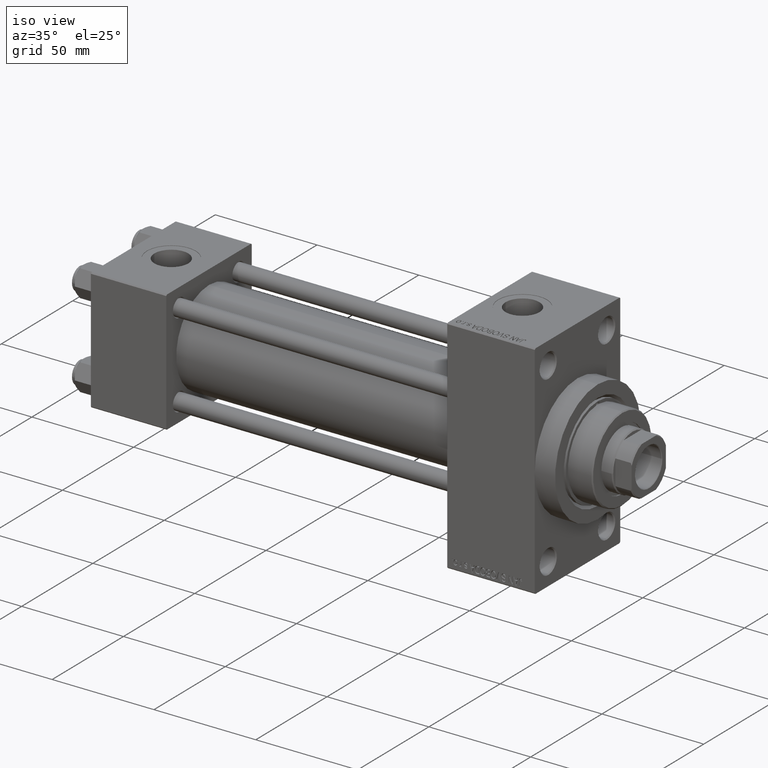
[diagram: clean part render]
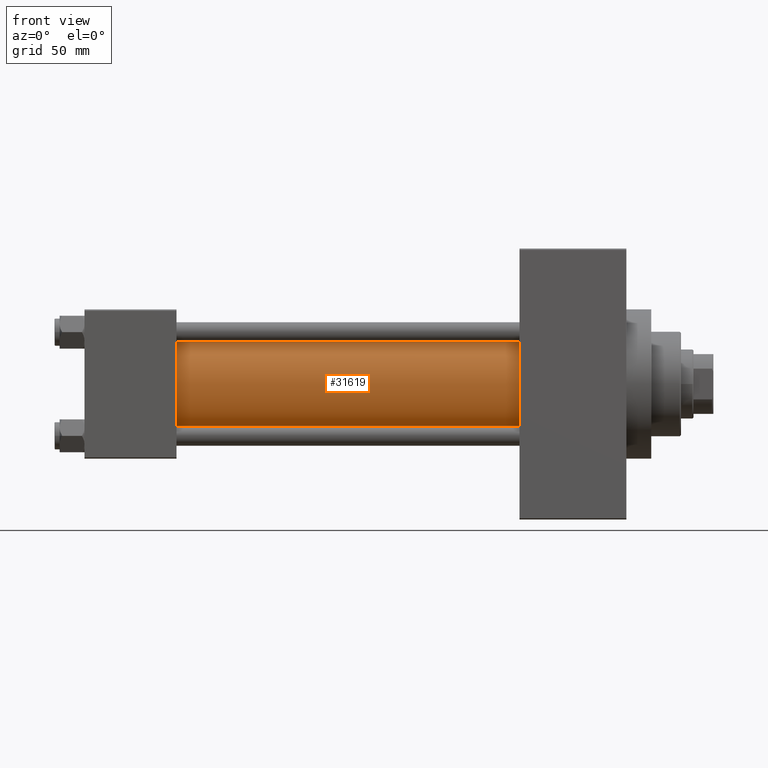
[diagram: tour spotlight — one face highlighted and labeled with its STEP entity id]
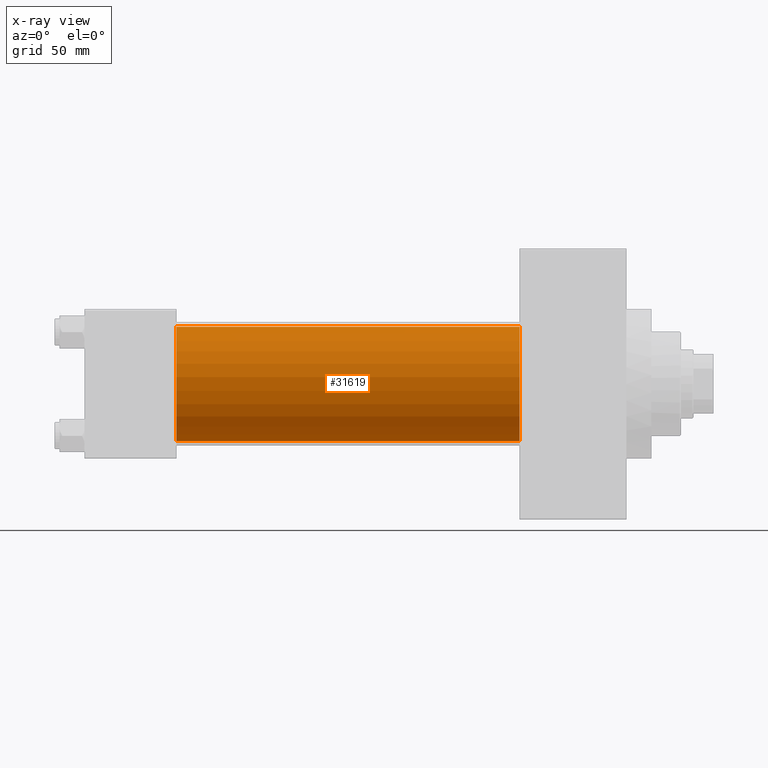
[diagram: x-ray of the same camera — body ghosted, this tour face saturated]
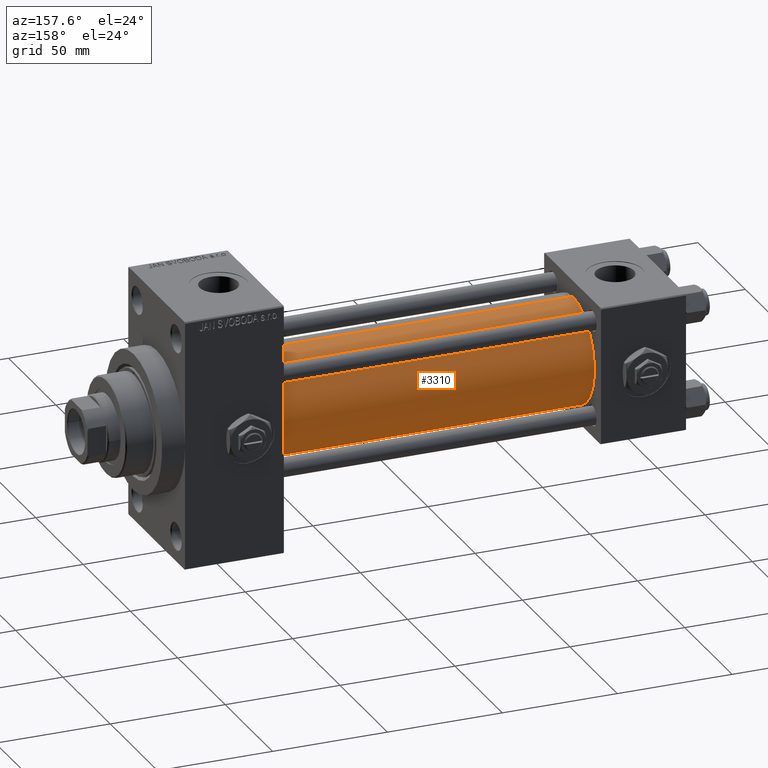
[diagram: tour spotlight — one face highlighted and labeled with its STEP entity id]
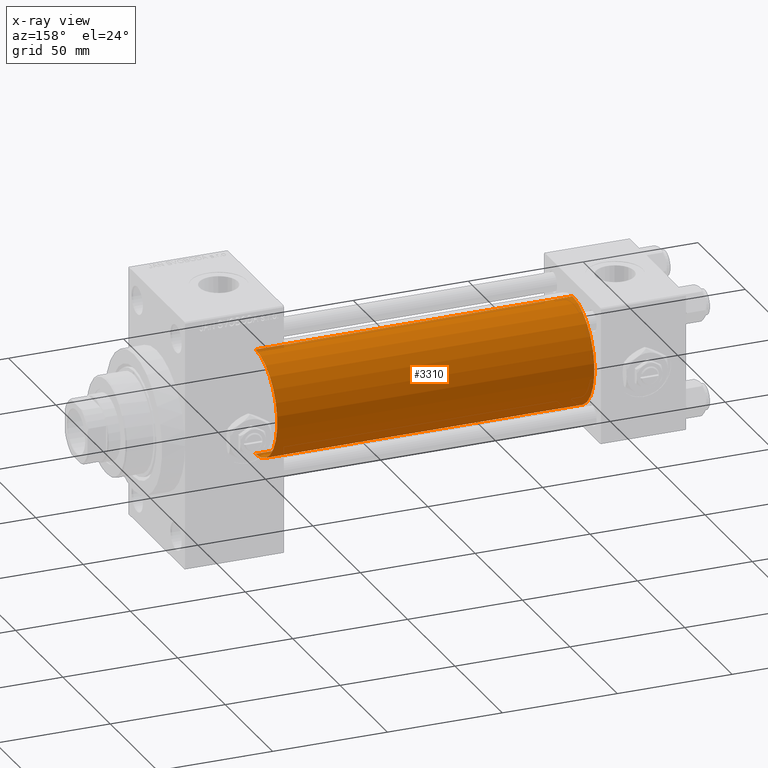
[diagram: x-ray of the same camera — body ghosted, this tour face saturated]
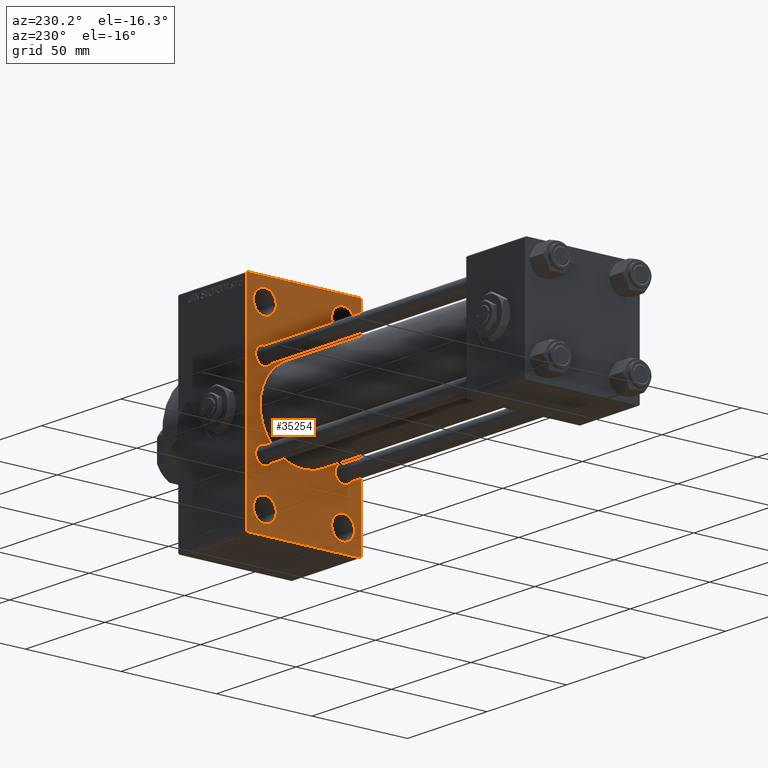
[diagram: tour spotlight — one face highlighted and labeled with its STEP entity id]
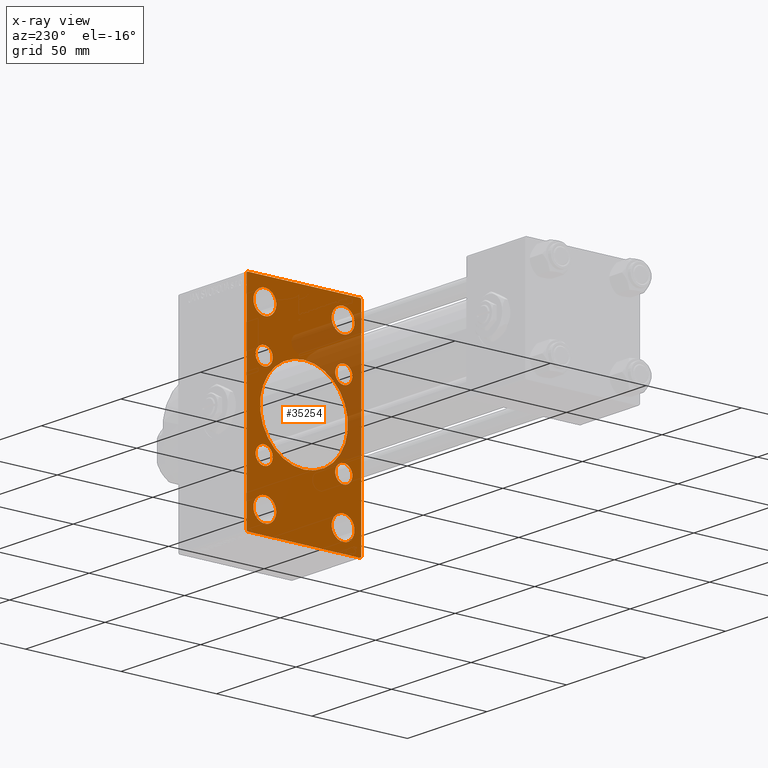
[diagram: x-ray of the same camera — body ghosted, this tour face saturated]
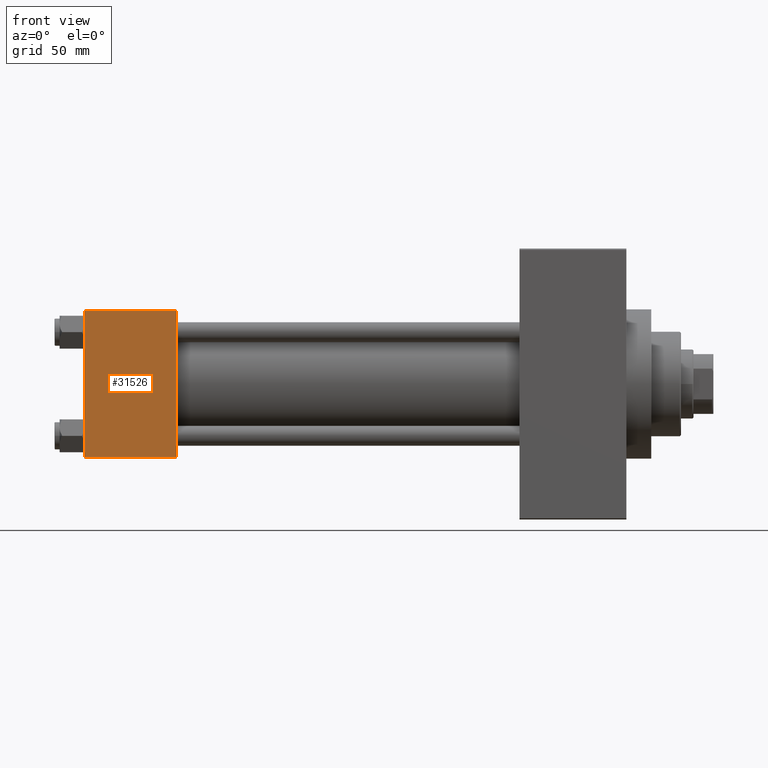
[diagram: tour spotlight — one face highlighted and labeled with its STEP entity id]
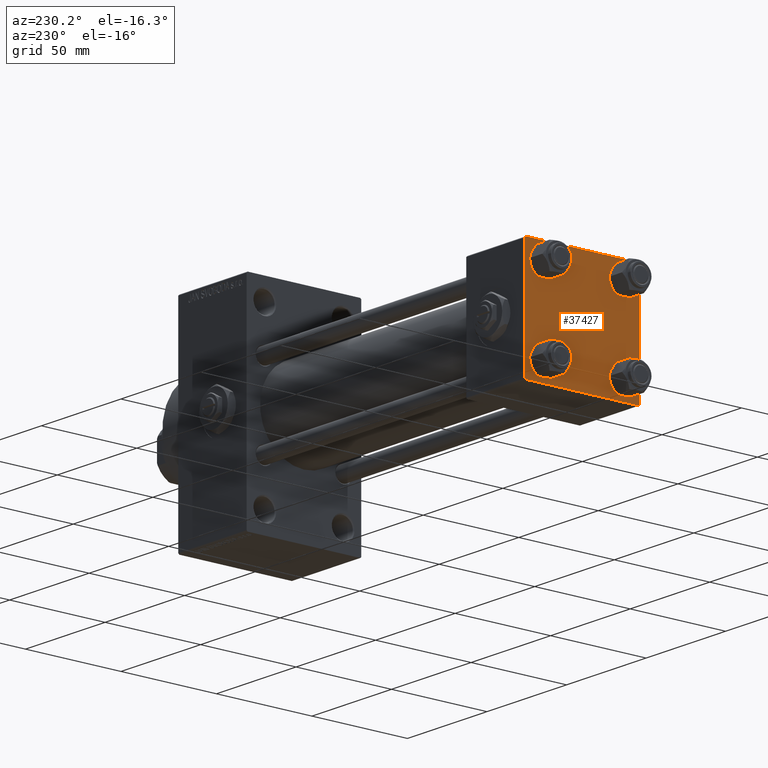
[diagram: tour spotlight — one face highlighted and labeled with its STEP entity id]
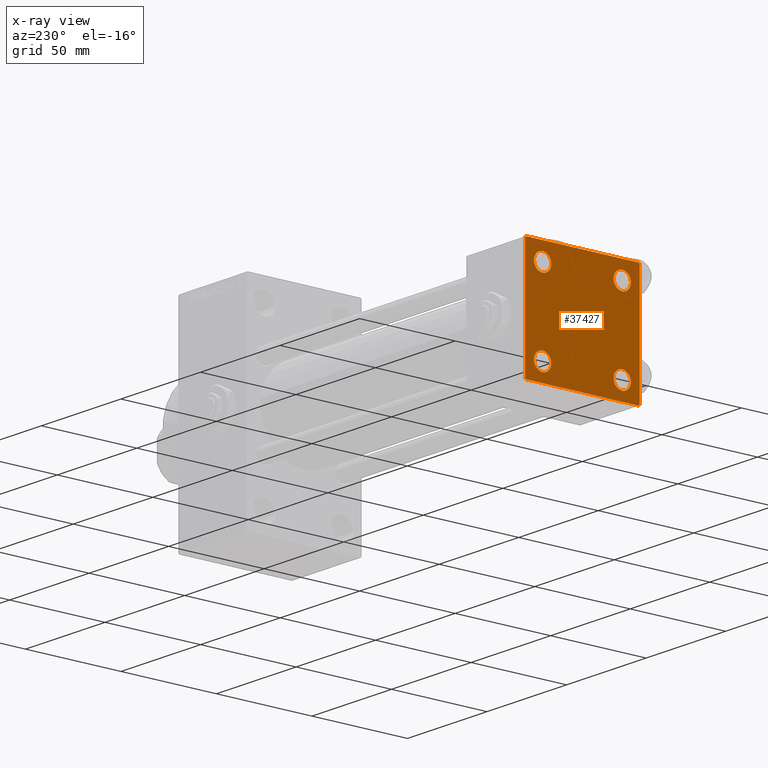
[diagram: x-ray of the same camera — body ghosted, this tour face saturated]
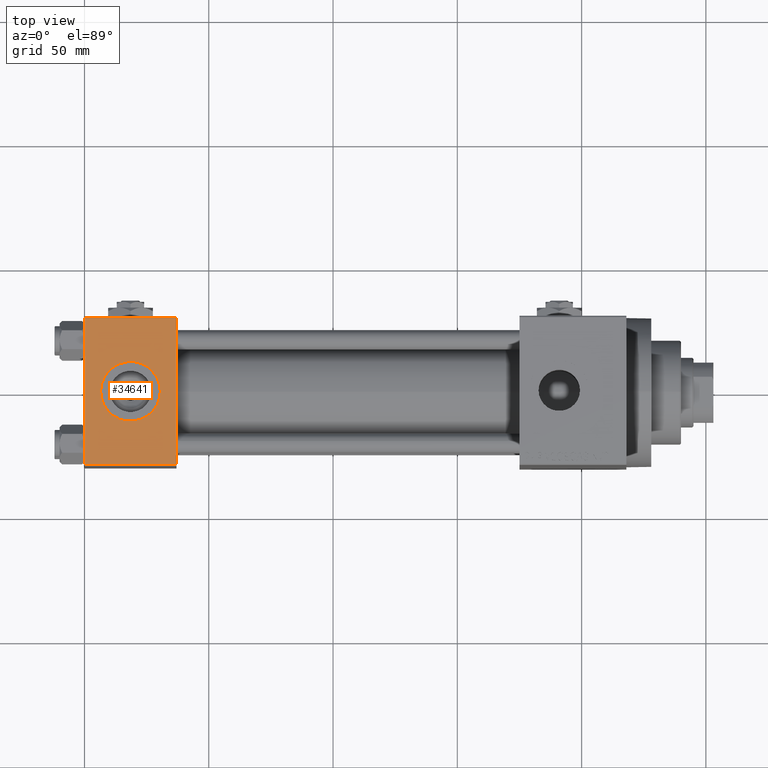
[diagram: tour spotlight — one face highlighted and labeled with its STEP entity id]
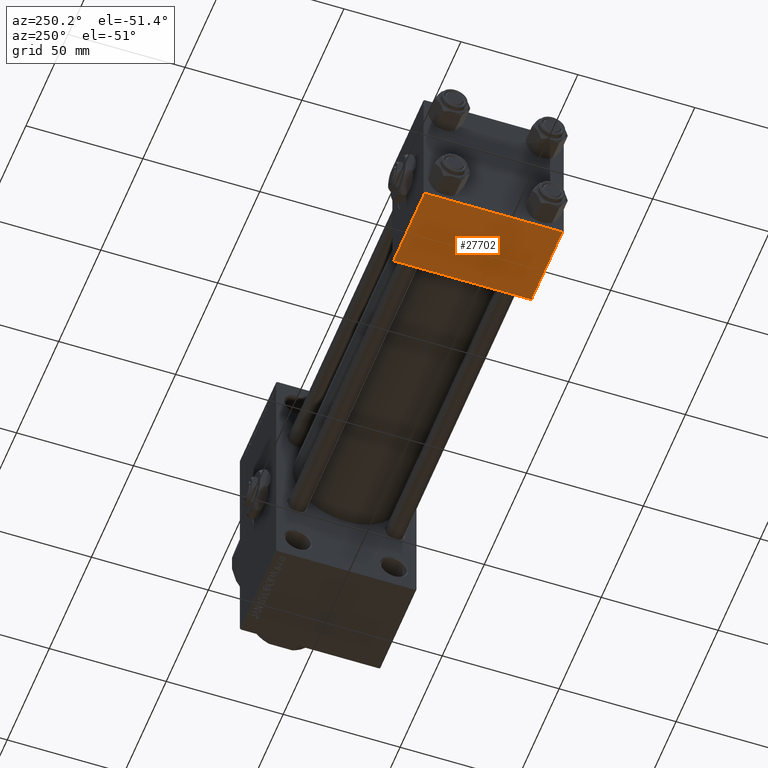
[diagram: tour spotlight — one face highlighted and labeled with its STEP entity id]
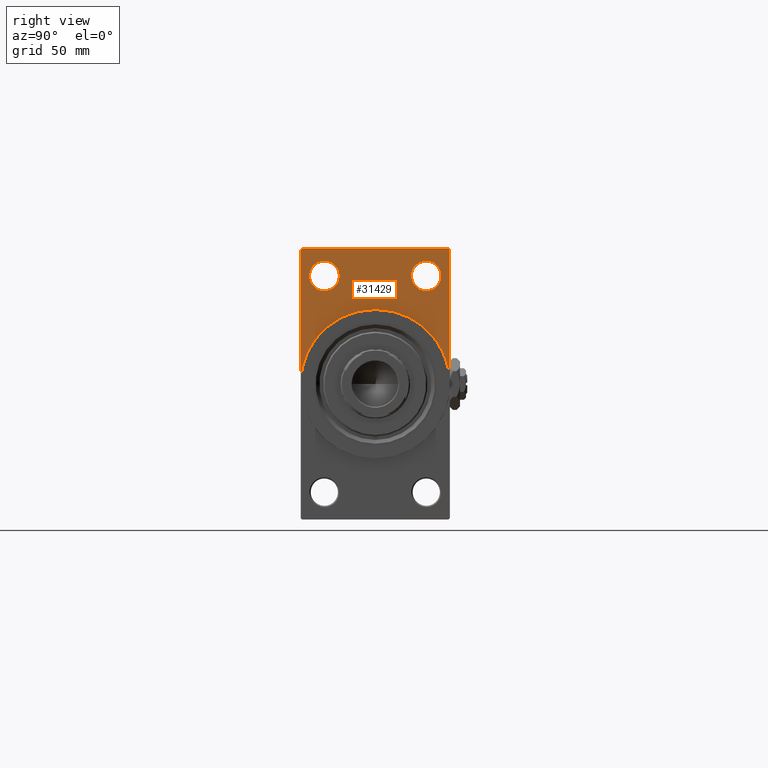
[diagram: tour spotlight — one face highlighted and labeled with its STEP entity id]
A machine part: a face-by-face anatomy tour. The part has 1215 B-rep faces; the first image is the clean iso view, then the 8 largest visible faces are spotlighted one at a time (largest first), each with its STEP entity span.

Face 1 — front view, entity #31619. An x-ray twin of the same camera follows (body ghosted, this face saturated) — the face is partly hidden behind the body. In plain terms, the highlighted cylindrical surface (partial cylindrical patch) has radius 23 mm, axis along (-1, -0, -0).
Definition (entity closure, byte-faithful):
#417 = LINE ( 'NONE', #38034, #8131 ) ;
#2222 = CIRCLE ( 'NONE', #45475, 23.00000000000000000 ) ;
#3898 = CARTESIAN_POINT ( 'NONE',  ( 175.0000000000000284, 2.146024240737016609E-16, -23.00000000000000000 ) ) ;
#4995 = VERTEX_POINT ( 'NONE', #15449 ) ;
#6700 = CARTESIAN_POINT ( 'NONE',  ( 37.00000000000000711, -2.602085213965210642E-15, 23.00000000000000000 ) ) ;
#7442 = DIRECTION ( 'NONE',  ( -1.000000000000000000, -0.000000000000000000, -0.000000000000000000 ) ) ;
#8131 = VECTOR ( 'NONE', #7442, 1000.000000000000000 ) ;
#9051 = EDGE_CURVE ( 'NONE', #4995, #28016, #2222, .T. ) ;
#9098 = DIRECTION ( 'NONE',  ( 0.000000000000000000, 0.000000000000000000, -1.000000000000000000 ) ) ;
#10409 = AXIS2_PLACEMENT_3D ( 'NONE', #32004, #47041, #16454 ) ;
#10648 = EDGE_CURVE ( 'NONE', #28016, #28208, #32932, .T. ) ;
#14901 = CARTESIAN_POINT ( 'NONE',  ( 175.0000000000000284, -2.602085213965210642E-15, 0.000000000000000000 ) ) ;
#15264 = ORIENTED_EDGE ( 'NONE', *, *, #21214, .T. ) ;
#15440 = EDGE_LOOP ( 'NONE', ( #22244, #20484, #27160, #15264 ) ) ;
#15449 = CARTESIAN_POINT ( 'NONE',  ( 175.0000000000000284, -2.602085213965210642E-15, 23.00000000000000000 ) ) ;
#16385 = DIRECTION ( 'NONE',  ( 1.000000000000000000, 0.000000000000000000, 0.000000000000000000 ) ) ;
#16454 = DIRECTION ( 'NONE',  ( 0.000000000000000000, 0.000000000000000000, 1.000000000000000000 ) ) ;
#18973 = VECTOR ( 'NONE', #48218, 1000.000000000000000 ) ;
#20359 = VERTEX_POINT ( 'NONE', #6700 ) ;
#20484 = ORIENTED_EDGE ( 'NONE', *, *, #9051, .F. ) ;
#21214 = EDGE_CURVE ( 'NONE', #20359, #28208, #28058, .T. ) ;
#22244 = ORIENTED_EDGE ( 'NONE', *, *, #10648, .F. ) ;
#25206 = EDGE_CURVE ( 'NONE', #4995, #20359, #417, .T. ) ;
#26178 = DIRECTION ( 'NONE',  ( 0.000000000000000000, 0.000000000000000000, 1.000000000000000000 ) ) ;
#26937 = FACE_OUTER_BOUND ( 'NONE', #15440, .T. ) ;
#27160 = ORIENTED_EDGE ( 'NONE', *, *, #25206, .T. ) ;
#28016 = VERTEX_POINT ( 'NONE', #3898 ) ;
#28058 = CIRCLE ( 'NONE', #10409, 23.00000000000000000 ) ;
#28208 = VERTEX_POINT ( 'NONE', #32963 ) ;
#29950 = DIRECTION ( 'NONE',  ( -1.000000000000000000, -0.000000000000000000, -0.000000000000000000 ) ) ;
#31619 = ADVANCED_FACE ( 'NONE', ( #26937 ), #41980, .T. ) ;
#32004 = CARTESIAN_POINT ( 'NONE',  ( 37.00000000000000711, -2.602085213965210642E-15, 0.000000000000000000 ) ) ;
#32425 = CARTESIAN_POINT ( 'NONE',  ( 175.0000000000000284, -2.602085213965210642E-15, 0.000000000000000000 ) ) ;
#32932 = LINE ( 'NONE', #36684, #18973 ) ;
#32963 = CARTESIAN_POINT ( 'NONE',  ( 37.00000000000000711, 2.146024240737016609E-16, -23.00000000000000000 ) ) ;
#36684 = CARTESIAN_POINT ( 'NONE',  ( 175.0000000000000284, 2.146024240737016609E-16, -23.00000000000000000 ) ) ;
#38034 = CARTESIAN_POINT ( 'NONE',  ( 175.0000000000000284, -2.602085213965210642E-15, 23.00000000000000000 ) ) ;
#41074 = AXIS2_PLACEMENT_3D ( 'NONE', #14901, #29950, #26178 ) ;
#41980 = CYLINDRICAL_SURFACE ( 'NONE', #41074, 23.00000000000000000 ) ;
#45475 = AXIS2_PLACEMENT_3D ( 'NONE', #32425, #16385, #9098 ) ;
#47041 = DIRECTION ( 'NONE',  ( 1.000000000000000000, -0.000000000000000000, 0.000000000000000000 ) ) ;
#48218 = DIRECTION ( 'NONE',  ( -1.000000000000000000, -0.000000000000000000, -0.000000000000000000 ) ) ;

Face 2 — auxiliary view, entity #3310. An x-ray twin of the same camera follows (body ghosted, this face saturated) — the face is partly hidden behind the body. In plain terms, the highlighted cylindrical surface (partial cylindrical patch) has radius 23 mm, axis along (-1, -0, -0).
Definition (entity closure, byte-faithful):
#417 = LINE ( 'NONE', #38034, #8131 ) ;
#2587 = DIRECTION ( 'NONE',  ( 1.000000000000000000, -0.000000000000000000, 0.000000000000000000 ) ) ;
#2711 = DIRECTION ( 'NONE',  ( 1.000000000000000000, 0.000000000000000000, 0.000000000000000000 ) ) ;
#2994 = CARTESIAN_POINT ( 'NONE',  ( 175.0000000000000284, -2.602085213965210642E-15, 0.000000000000000000 ) ) ;
#3310 = ADVANCED_FACE ( 'NONE', ( #14560 ), #14805, .T. ) ;
#3898 = CARTESIAN_POINT ( 'NONE',  ( 175.0000000000000284, 2.146024240737016609E-16, -23.00000000000000000 ) ) ;
#4995 = VERTEX_POINT ( 'NONE', #15449 ) ;
#5127 = EDGE_CURVE ( 'NONE', #28208, #20359, #12550, .T. ) ;
#6700 = CARTESIAN_POINT ( 'NONE',  ( 37.00000000000000711, -2.602085213965210642E-15, 23.00000000000000000 ) ) ;
#7442 = DIRECTION ( 'NONE',  ( -1.000000000000000000, -0.000000000000000000, -0.000000000000000000 ) ) ;
#8131 = VECTOR ( 'NONE', #7442, 1000.000000000000000 ) ;
#10060 = AXIS2_PLACEMENT_3D ( 'NONE', #2994, #30095, #18308 ) ;
#10648 = EDGE_CURVE ( 'NONE', #28016, #28208, #32932, .T. ) ;
#12550 = CIRCLE ( 'NONE', #46977, 23.00000000000000000 ) ;
#13654 = DIRECTION ( 'NONE',  ( 0.000000000000000000, 0.000000000000000000, 1.000000000000000000 ) ) ;
#14560 = FACE_OUTER_BOUND ( 'NONE', #18312, .T. ) ;
#14805 = CYLINDRICAL_SURFACE ( 'NONE', #10060, 23.00000000000000000 ) ;
#15449 = CARTESIAN_POINT ( 'NONE',  ( 175.0000000000000284, -2.602085213965210642E-15, 23.00000000000000000 ) ) ;
#16679 = CIRCLE ( 'NONE', #18250, 23.00000000000000000 ) ;
#18250 = AXIS2_PLACEMENT_3D ( 'NONE', #45350, #2711, #45109 ) ;
#18308 = DIRECTION ( 'NONE',  ( 0.000000000000000000, 0.000000000000000000, 1.000000000000000000 ) ) ;
#18312 = EDGE_LOOP ( 'NONE', ( #30101, #36385, #41508, #44875 ) ) ;
#18973 = VECTOR ( 'NONE', #48218, 1000.000000000000000 ) ;
#20359 = VERTEX_POINT ( 'NONE', #6700 ) ;
#25206 = EDGE_CURVE ( 'NONE', #4995, #20359, #417, .T. ) ;
#28016 = VERTEX_POINT ( 'NONE', #3898 ) ;
#28208 = VERTEX_POINT ( 'NONE', #32963 ) ;
#29186 = CARTESIAN_POINT ( 'NONE',  ( 37.00000000000000711, -2.602085213965210642E-15, 0.000000000000000000 ) ) ;
#30095 = DIRECTION ( 'NONE',  ( -1.000000000000000000, -0.000000000000000000, -0.000000000000000000 ) ) ;
#30101 = ORIENTED_EDGE ( 'NONE', *, *, #44272, .F. ) ;
#32932 = LINE ( 'NONE', #36684, #18973 ) ;
#32963 = CARTESIAN_POINT ( 'NONE',  ( 37.00000000000000711, 2.146024240737016609E-16, -23.00000000000000000 ) ) ;
#36385 = ORIENTED_EDGE ( 'NONE', *, *, #10648, .T. ) ;
#36684 = CARTESIAN_POINT ( 'NONE',  ( 175.0000000000000284, 2.146024240737016609E-16, -23.00000000000000000 ) ) ;
#38034 = CARTESIAN_POINT ( 'NONE',  ( 175.0000000000000284, -2.602085213965210642E-15, 23.00000000000000000 ) ) ;
#41508 = ORIENTED_EDGE ( 'NONE', *, *, #5127, .T. ) ;
#44272 = EDGE_CURVE ( 'NONE', #28016, #4995, #16679, .T. ) ;
#44875 = ORIENTED_EDGE ( 'NONE', *, *, #25206, .F. ) ;
#45109 = DIRECTION ( 'NONE',  ( 0.000000000000000000, 0.000000000000000000, -1.000000000000000000 ) ) ;
#45350 = CARTESIAN_POINT ( 'NONE',  ( 175.0000000000000284, -2.602085213965210642E-15, 0.000000000000000000 ) ) ;
#46977 = AXIS2_PLACEMENT_3D ( 'NONE', #29186, #2587, #13654 ) ;
#48218 = DIRECTION ( 'NONE',  ( -1.000000000000000000, -0.000000000000000000, -0.000000000000000000 ) ) ;

Face 3 — auxiliary view, entity #35254. An x-ray twin of the same camera follows (body ghosted, this face saturated) — the face is partly hidden behind the body. In plain terms, the highlighted planar face has unit normal (-1, 0, 0).
Definition (entity closure, byte-faithful):
#134 = FACE_BOUND ( 'NONE', #12650, .T. ) ;
#368 = EDGE_CURVE ( 'NONE', #31129, #46872, #9963, .T. ) ;
#803 = ORIENTED_EDGE ( 'NONE', *, *, #36319, .T. ) ;
#1617 = EDGE_LOOP ( 'NONE', ( #37012, #20348, #46446, #48497, #9865, #47494, #25169, #44652 ) ) ;
#1722 = VERTEX_POINT ( 'NONE', #37461 ) ;
#1925 = CARTESIAN_POINT ( 'NONE',  ( 175.0000000000000284, -29.50000000000002842, 54.50000000000000000 ) ) ;
#1938 = EDGE_CURVE ( 'NONE', #27489, #5564, #31208, .T. ) ;
#2084 = CARTESIAN_POINT ( 'NONE',  ( 175.0000000000000284, 20.50000000000000000, 49.49999999999983658 ) ) ;
#2222 = CIRCLE ( 'NONE', #45475, 23.00000000000000000 ) ;
#2350 = VERTEX_POINT ( 'NONE', #33037 ) ;
#2602 = VERTEX_POINT ( 'NONE', #2084 ) ;
#2620 = CIRCLE ( 'NONE', #25045, 5.999999999999838352 ) ;
#2711 = DIRECTION ( 'NONE',  ( 1.000000000000000000, 0.000000000000000000, 0.000000000000000000 ) ) ;
#2813 = CARTESIAN_POINT ( 'NONE',  ( 175.0000000000000284, -20.50000000000000000, 43.50000000000000000 ) ) ;
#2861 = EDGE_CURVE ( 'NONE', #2602, #35581, #20498, .T. ) ;
#3013 = AXIS2_PLACEMENT_3D ( 'NONE', #32523, #47323, #4943 ) ;
#3080 = CARTESIAN_POINT ( 'NONE',  ( 175.0000000000000284, 29.49999999999996803, 54.49999999999999289 ) ) ;
#3898 = CARTESIAN_POINT ( 'NONE',  ( 175.0000000000000284, 2.146024240737016609E-16, -23.00000000000000000 ) ) ;
#4142 = DIRECTION ( 'NONE',  ( 0.000000000000000000, 0.000000000000000000, 1.000000000000000000 ) ) ;
#4204 = EDGE_LOOP ( 'NONE', ( #16976, #37945 ) ) ;
#4478 = CIRCLE ( 'NONE', #5252, 5.999999999999838352 ) ;
#4626 = FACE_BOUND ( 'NONE', #16366, .T. ) ;
#4784 = DIRECTION ( 'NONE',  ( 0.000000000000000000, 0.000000000000000000, 1.000000000000000000 ) ) ;
#4943 = DIRECTION ( 'NONE',  ( 0.000000000000000000, 0.000000000000000000, 1.000000000000000000 ) ) ;
#4995 = VERTEX_POINT ( 'NONE', #15449 ) ;
#5226 = DIRECTION ( 'NONE',  ( 0.000000000000000000, 0.000000000000000000, 1.000000000000000000 ) ) ;
#5252 = AXIS2_PLACEMENT_3D ( 'NONE', #2813, #22396, #37690 ) ;
#5282 = AXIS2_PLACEMENT_3D ( 'NONE', #42470, #26911, #37939 ) ;
#5564 = VERTEX_POINT ( 'NONE', #9920 ) ;
#5593 = DIRECTION ( 'NONE',  ( 1.000000000000000000, -0.000000000000000000, 0.000000000000000000 ) ) ;
#5635 = DIRECTION ( 'NONE',  ( 0.000000000000000000, 0.000000000000000000, -1.000000000000000000 ) ) ;
#6533 = CARTESIAN_POINT ( 'NONE',  ( 175.0000000000000284, 20.84999999999999787, 16.34999999999999432 ) ) ;
#6753 = VERTEX_POINT ( 'NONE', #41212 ) ;
#7305 = DIRECTION ( 'NONE',  ( 0.000000000000000000, 0.000000000000000000, 1.000000000000000000 ) ) ;
#7415 = ORIENTED_EDGE ( 'NONE', *, *, #22534, .T. ) ;
#7572 = EDGE_CURVE ( 'NONE', #32815, #12782, #32471, .T. ) ;
#7648 = ORIENTED_EDGE ( 'NONE', *, *, #31688, .T. ) ;
#7797 = EDGE_CURVE ( 'NONE', #1722, #24518, #47048, .T. ) ;
#8029 = EDGE_CURVE ( 'NONE', #32470, #42945, #43863, .T. ) ;
#8451 = EDGE_LOOP ( 'NONE', ( #7648, #22162 ) ) ;
#8866 = CARTESIAN_POINT ( 'NONE',  ( 175.0000000000000284, -20.50000000000000000, 37.50000000000015632 ) ) ;
#9051 = EDGE_CURVE ( 'NONE', #4995, #28016, #2222, .T. ) ;
#9066 = CARTESIAN_POINT ( 'NONE',  ( 175.0000000000000284, 20.50000000000000000, -43.50000000000000000 ) ) ;
#9098 = DIRECTION ( 'NONE',  ( 0.000000000000000000, 0.000000000000000000, -1.000000000000000000 ) ) ;
#9568 = CARTESIAN_POINT ( 'NONE',  ( 175.0000000000000284, -20.50000000000000000, -37.50000000000015632 ) ) ;
#9865 = ORIENTED_EDGE ( 'NONE', *, *, #19237, .F. ) ;
#9907 = DIRECTION ( 'NONE',  ( 0.000000000000000000, 0.000000000000000000, 1.000000000000000000 ) ) ;
#9920 = CARTESIAN_POINT ( 'NONE',  ( 175.0000000000000284, -30.00000000000000000, -53.99999999999995737 ) ) ;
#9963 = CIRCLE ( 'NONE', #31610, 4.500000000000007105 ) ;
#10206 = LINE ( 'NONE', #19486, #12916 ) ;
#10857 = AXIS2_PLACEMENT_3D ( 'NONE', #43532, #12706, #16228 ) ;
#10967 = CARTESIAN_POINT ( 'NONE',  ( 175.0000000000000284, -20.84999999999999076, -16.34999999999999787 ) ) ;
#11611 = CARTESIAN_POINT ( 'NONE',  ( 175.0000000000000284, 29.50000000000002132, -54.49999999999999289 ) ) ;
#12135 = DIRECTION ( 'NONE',  ( 0.000000000000000000, -0.7071067811865352493, 0.7071067811865597852 ) ) ;
#12413 = FACE_BOUND ( 'NONE', #8451, .T. ) ;
#12650 = EDGE_LOOP ( 'NONE', ( #803, #22963 ) ) ;
#12706 = DIRECTION ( 'NONE',  ( 1.000000000000000000, -0.000000000000000000, 0.000000000000000000 ) ) ;
#12782 = VERTEX_POINT ( 'NONE', #28297 ) ;
#12811 = DIRECTION ( 'NONE',  ( 0.000000000000000000, 0.000000000000000000, 1.000000000000000000 ) ) ;
#12916 = VECTOR ( 'NONE', #34782, 1000.000000000000000 ) ;
#13391 = ORIENTED_EDGE ( 'NONE', *, *, #9051, .T. ) ;
#13419 = CARTESIAN_POINT ( 'NONE',  ( 175.0000000000000284, 29.99999999999999645, 54.49999999999999289 ) ) ;
#13911 = CIRCLE ( 'NONE', #28334, 5.999999999999838352 ) ;
#14191 = DIRECTION ( 'NONE',  ( 0.000000000000000000, -1.000000000000000000, -1.156482317317871478E-16 ) ) ;
#14973 = DIRECTION ( 'NONE',  ( 0.000000000000000000, 0.000000000000000000, 1.000000000000000000 ) ) ;
#15022 = VERTEX_POINT ( 'NONE', #19471 ) ;
#15137 = CARTESIAN_POINT ( 'NONE',  ( 175.0000000000000284, 20.50000000000000000, 37.50000000000015632 ) ) ;
#15200 = FACE_BOUND ( 'NONE', #24435, .T. ) ;
#15322 = ORIENTED_EDGE ( 'NONE', *, *, #20817, .T. ) ;
#15449 = CARTESIAN_POINT ( 'NONE',  ( 175.0000000000000284, -2.602085213965210642E-15, 23.00000000000000000 ) ) ;
#15811 = EDGE_LOOP ( 'NONE', ( #20119, #15322 ) ) ;
#15822 = CARTESIAN_POINT ( 'NONE',  ( 175.0000000000000284, -20.84999999999999076, 16.34999999999999787 ) ) ;
#16116 = CARTESIAN_POINT ( 'NONE',  ( 175.0000000000000284, 42.00000000000000711, -42.00000000000000711 ) ) ;
#16228 = DIRECTION ( 'NONE',  ( 0.000000000000000000, 0.000000000000000000, 1.000000000000000000 ) ) ;
#16366 = EDGE_LOOP ( 'NONE', ( #13391, #40635 ) ) ;
#16385 = DIRECTION ( 'NONE',  ( 1.000000000000000000, 0.000000000000000000, 0.000000000000000000 ) ) ;
#16679 = CIRCLE ( 'NONE', #18250, 23.00000000000000000 ) ;
#16976 = ORIENTED_EDGE ( 'NONE', *, *, #8029, .T. ) ;
#17059 = AXIS2_PLACEMENT_3D ( 'NONE', #33963, #49245, #30195 ) ;
#17540 = CARTESIAN_POINT ( 'NONE',  ( 175.0000000000000284, -30.00000000000000000, 54.00000000000002842 ) ) ;
#17592 = AXIS2_PLACEMENT_3D ( 'NONE', #45312, #26751, #14973 ) ;
#18026 = DIRECTION ( 'NONE',  ( 0.000000000000000000, -1.000000000000000000, 1.156482317317871478E-16 ) ) ;
#18169 = AXIS2_PLACEMENT_3D ( 'NONE', #20096, #44138, #25568 ) ;
#18250 = AXIS2_PLACEMENT_3D ( 'NONE', #45350, #2711, #45109 ) ;
#18261 = CARTESIAN_POINT ( 'NONE',  ( 175.0000000000000284, 20.84999999999999787, -20.85000000000000142 ) ) ;
#18339 = CARTESIAN_POINT ( 'NONE',  ( 175.0000000000000284, 20.84999999999999787, 20.85000000000000142 ) ) ;
#18383 = CIRCLE ( 'NONE', #17592, 4.500000000000007105 ) ;
#18797 = LINE ( 'NONE', #34101, #24665 ) ;
#18817 = CARTESIAN_POINT ( 'NONE',  ( 175.0000000000000284, -29.49999999999997513, -54.50000000000000000 ) ) ;
#19158 = DIRECTION ( 'NONE',  ( 1.000000000000000000, -0.000000000000000000, 0.000000000000000000 ) ) ;
#19237 = EDGE_CURVE ( 'NONE', #37019, #44462, #25071, .T. ) ;
#19446 = DIRECTION ( 'NONE',  ( 1.000000000000000000, -0.000000000000000000, 0.000000000000000000 ) ) ;
#19471 = CARTESIAN_POINT ( 'NONE',  ( 175.0000000000000284, -20.84999999999999076, 25.35000000000001208 ) ) ;
#19486 = CARTESIAN_POINT ( 'NONE',  ( 175.0000000000000284, -42.00000000000011369, 41.99999999999982236 ) ) ;
#20096 = CARTESIAN_POINT ( 'NONE',  ( 175.0000000000000284, -20.50000000000000000, -43.50000000000000000 ) ) ;
#20119 = ORIENTED_EDGE ( 'NONE', *, *, #368, .T. ) ;
#20348 = ORIENTED_EDGE ( 'NONE', *, *, #1938, .T. ) ;
#20406 = EDGE_CURVE ( 'NONE', #2350, #33118, #18383, .T. ) ;
#20498 = CIRCLE ( 'NONE', #10857, 5.999999999999838352 ) ;
#20550 = ORIENTED_EDGE ( 'NONE', *, *, #44555, .T. ) ;
#20817 = EDGE_CURVE ( 'NONE', #46872, #31129, #38412, .T. ) ;
#22109 = CARTESIAN_POINT ( 'NONE',  ( 175.0000000000000284, 20.50000000000000000, -49.49999999999983658 ) ) ;
#22162 = ORIENTED_EDGE ( 'NONE', *, *, #39203, .T. ) ;
#22396 = DIRECTION ( 'NONE',  ( 1.000000000000000000, -0.000000000000000000, 0.000000000000000000 ) ) ;
#22534 = EDGE_CURVE ( 'NONE', #15022, #34971, #33676, .T. ) ;
#22622 = DIRECTION ( 'NONE',  ( 0.000000000000000000, 0.000000000000000000, 1.000000000000000000 ) ) ;
#22963 = ORIENTED_EDGE ( 'NONE', *, *, #32118, .T. ) ;
#23209 = DIRECTION ( 'NONE',  ( -0.000000000000000000, 0.000000000000000000, 1.000000000000000000 ) ) ;
#23686 = FACE_BOUND ( 'NONE', #4204, .T. ) ;
#23716 = CARTESIAN_POINT ( 'NONE',  ( 175.0000000000000284, 20.84999999999999787, -25.35000000000000853 ) ) ;
#23970 = VECTOR ( 'NONE', #18026, 1000.000000000000000 ) ;
#24294 = EDGE_CURVE ( 'NONE', #38322, #44462, #10206, .T. ) ;
#24435 = EDGE_LOOP ( 'NONE', ( #43316, #34620 ) ) ;
#24518 = VERTEX_POINT ( 'NONE', #22109 ) ;
#24665 = VECTOR ( 'NONE', #33610, 1000.000000000000000 ) ;
#25045 = AXIS2_PLACEMENT_3D ( 'NONE', #9066, #19446, #4142 ) ;
#25071 = LINE ( 'NONE', #47881, #23970 ) ;
#25169 = ORIENTED_EDGE ( 'NONE', *, *, #7572, .T. ) ;
#25568 = DIRECTION ( 'NONE',  ( 0.000000000000000000, 0.000000000000000000, 1.000000000000000000 ) ) ;
#25710 = DIRECTION ( 'NONE',  ( 1.000000000000000000, -0.000000000000000000, 0.000000000000000000 ) ) ;
#25828 = AXIS2_PLACEMENT_3D ( 'NONE', #33980, #25710, #9907 ) ;
#26450 = EDGE_CURVE ( 'NONE', #33118, #2350, #46638, .T. ) ;
#26595 = VERTEX_POINT ( 'NONE', #8866 ) ;
#26751 = DIRECTION ( 'NONE',  ( 1.000000000000000000, -0.000000000000000000, 0.000000000000000000 ) ) ;
#26866 = DIRECTION ( 'NONE',  ( 1.000000000000000000, -0.000000000000000000, 0.000000000000000000 ) ) ;
#26911 = DIRECTION ( 'NONE',  ( 1.000000000000000000, -0.000000000000000000, 0.000000000000000000 ) ) ;
#26972 = CARTESIAN_POINT ( 'NONE',  ( 175.0000000000000284, 0.000000000000000000, 0.000000000000000000 ) ) ;
#27161 = EDGE_CURVE ( 'NONE', #24518, #1722, #2620, .T. ) ;
#27269 = EDGE_LOOP ( 'NONE', ( #45036, #39839 ) ) ;
#27489 = VERTEX_POINT ( 'NONE', #18817 ) ;
#27619 = CARTESIAN_POINT ( 'NONE',  ( 175.0000000000000284, 20.50000000000000000, 43.50000000000000000 ) ) ;
#27703 = FACE_BOUND ( 'NONE', #15811, .T. ) ;
#27837 = AXIS2_PLACEMENT_3D ( 'NONE', #18339, #26866, #7305 ) ;
#27859 = CARTESIAN_POINT ( 'NONE',  ( 175.0000000000000284, -20.50000000000000000, 43.50000000000000000 ) ) ;
#27929 = EDGE_CURVE ( 'NONE', #37019, #32815, #29006, .T. ) ;
#28016 = VERTEX_POINT ( 'NONE', #3898 ) ;
#28297 = CARTESIAN_POINT ( 'NONE',  ( 175.0000000000000284, 29.99999999999999645, -54.00000000000002132 ) ) ;
#28334 = AXIS2_PLACEMENT_3D ( 'NONE', #27859, #42430, #12811 ) ;
#29006 = LINE ( 'NONE', #44540, #37859 ) ;
#29808 = DIRECTION ( 'NONE',  ( 0.000000000000000000, 0.000000000000000000, 1.000000000000000000 ) ) ;
#30074 = VERTEX_POINT ( 'NONE', #30596 ) ;
#30195 = DIRECTION ( 'NONE',  ( 0.000000000000000000, 0.000000000000000000, 1.000000000000000000 ) ) ;
#30308 = DIRECTION ( 'NONE',  ( 1.000000000000000000, -0.000000000000000000, 0.000000000000000000 ) ) ;
#30498 = PLANE ( 'NONE',  #47741 ) ;
#30596 = CARTESIAN_POINT ( 'NONE',  ( 175.0000000000000284, -20.50000000000000000, 49.49999999999983658 ) ) ;
#30907 = VECTOR ( 'NONE', #12135, 1000.000000000000000 ) ;
#31129 = VERTEX_POINT ( 'NONE', #46661 ) ;
#31208 = LINE ( 'NONE', #42230, #30907 ) ;
#31247 = FACE_BOUND ( 'NONE', #33030, .T. ) ;
#31420 = DIRECTION ( 'NONE',  ( -0.000000000000000000, -0.7071067811865474617, -0.7071067811865474617 ) ) ;
#31591 = CARTESIAN_POINT ( 'NONE',  ( 175.0000000000000284, -20.84999999999999076, 20.85000000000000497 ) ) ;
#31610 = AXIS2_PLACEMENT_3D ( 'NONE', #18261, #30308, #29808 ) ;
#31688 = EDGE_CURVE ( 'NONE', #37208, #6753, #41906, .T. ) ;
#32118 = EDGE_CURVE ( 'NONE', #26595, #30074, #13911, .T. ) ;
#32425 = CARTESIAN_POINT ( 'NONE',  ( 175.0000000000000284, -2.602085213965210642E-15, 0.000000000000000000 ) ) ;
#32470 = VERTEX_POINT ( 'NONE', #44082 ) ;
#32471 = LINE ( 'NONE', #13419, #40629 ) ;
#32523 = CARTESIAN_POINT ( 'NONE',  ( 175.0000000000000284, -20.84999999999999076, 20.85000000000000497 ) ) ;
#32815 = VERTEX_POINT ( 'NONE', #36489 ) ;
#33030 = EDGE_LOOP ( 'NONE', ( #41024, #36873 ) ) ;
#33037 = CARTESIAN_POINT ( 'NONE',  ( 175.0000000000000284, -20.84999999999999076, -25.35000000000001208 ) ) ;
#33118 = VERTEX_POINT ( 'NONE', #10967 ) ;
#33405 = CIRCLE ( 'NONE', #35830, 5.999999999999838352 ) ;
#33610 = DIRECTION ( 'NONE',  ( 0.000000000000000000, 0.000000000000000000, -1.000000000000000000 ) ) ;
#33676 = CIRCLE ( 'NONE', #34515, 4.500000000000007105 ) ;
#33963 = CARTESIAN_POINT ( 'NONE',  ( 175.0000000000000284, -20.50000000000000000, -43.50000000000000000 ) ) ;
#33980 = CARTESIAN_POINT ( 'NONE',  ( 175.0000000000000284, -20.84999999999999076, -20.85000000000000497 ) ) ;
#34101 = CARTESIAN_POINT ( 'NONE',  ( 175.0000000000000284, -30.00000000000000000, 54.50000000000000000 ) ) ;
#34195 = VECTOR ( 'NONE', #14191, 1000.000000000000000 ) ;
#34515 = AXIS2_PLACEMENT_3D ( 'NONE', #31591, #39580, #5226 ) ;
#34620 = ORIENTED_EDGE ( 'NONE', *, *, #20406, .T. ) ;
#34782 = DIRECTION ( 'NONE',  ( -0.000000000000000000, 0.7071067811865450192, 0.7071067811865500152 ) ) ;
#34950 = DIRECTION ( 'NONE',  ( 0.000000000000000000, 0.000000000000000000, 1.000000000000000000 ) ) ;
#34971 = VERTEX_POINT ( 'NONE', #15822 ) ;
#34989 = FACE_BOUND ( 'NONE', #27269, .T. ) ;
#35254 = ADVANCED_FACE ( 'NONE', ( #134, #12413, #31247, #34989, #42763, #23686, #27703, #15200, #4626, #46277 ), #30498, .T. ) ;
#35580 = EDGE_CURVE ( 'NONE', #42945, #32470, #35714, .T. ) ;
#35581 = VERTEX_POINT ( 'NONE', #15137 ) ;
#35714 = CIRCLE ( 'NONE', #5282, 4.500000000000007105 ) ;
#35830 = AXIS2_PLACEMENT_3D ( 'NONE', #27619, #42906, #4784 ) ;
#36319 = EDGE_CURVE ( 'NONE', #30074, #26595, #4478, .T. ) ;
#36489 = CARTESIAN_POINT ( 'NONE',  ( 175.0000000000000284, 29.99999999999999645, 53.99999999999996447 ) ) ;
#36873 = ORIENTED_EDGE ( 'NONE', *, *, #27161, .T. ) ;
#37012 = ORIENTED_EDGE ( 'NONE', *, *, #38722, .T. ) ;
#37019 = VERTEX_POINT ( 'NONE', #3080 ) ;
#37208 = VERTEX_POINT ( 'NONE', #9568 ) ;
#37461 = CARTESIAN_POINT ( 'NONE',  ( 175.0000000000000284, 20.50000000000000000, -37.50000000000015632 ) ) ;
#37690 = DIRECTION ( 'NONE',  ( 0.000000000000000000, 0.000000000000000000, 1.000000000000000000 ) ) ;
#37859 = VECTOR ( 'NONE', #41030, 1000.000000000000114 ) ;
#37939 = DIRECTION ( 'NONE',  ( 0.000000000000000000, 0.000000000000000000, 1.000000000000000000 ) ) ;
#37945 = ORIENTED_EDGE ( 'NONE', *, *, #35580, .T. ) ;
#38178 = LINE ( 'NONE', #16116, #48605 ) ;
#38322 = VERTEX_POINT ( 'NONE', #17540 ) ;
#38412 = CIRCLE ( 'NONE', #40793, 4.500000000000007105 ) ;
#38722 = EDGE_CURVE ( 'NONE', #43860, #27489, #49032, .T. ) ;
#39199 = EDGE_CURVE ( 'NONE', #35581, #2602, #33405, .T. ) ;
#39203 = EDGE_CURVE ( 'NONE', #6753, #37208, #48648, .T. ) ;
#39580 = DIRECTION ( 'NONE',  ( 1.000000000000000000, -0.000000000000000000, 0.000000000000000000 ) ) ;
#39839 = ORIENTED_EDGE ( 'NONE', *, *, #39199, .T. ) ;
#39951 = CARTESIAN_POINT ( 'NONE',  ( 175.0000000000000284, 20.84999999999999787, -20.85000000000000142 ) ) ;
#40629 = VECTOR ( 'NONE', #5635, 1000.000000000000000 ) ;
#40635 = ORIENTED_EDGE ( 'NONE', *, *, #44272, .T. ) ;
#40793 = AXIS2_PLACEMENT_3D ( 'NONE', #39951, #5593, #22622 ) ;
#41024 = ORIENTED_EDGE ( 'NONE', *, *, #7797, .T. ) ;
#41030 = DIRECTION ( 'NONE',  ( 0.000000000000000000, 0.7071067811865474617, -0.7071067811865474617 ) ) ;
#41188 = EDGE_CURVE ( 'NONE', #38322, #5564, #18797, .T. ) ;
#41212 = CARTESIAN_POINT ( 'NONE',  ( 175.0000000000000284, -20.50000000000000000, -49.49999999999983658 ) ) ;
#41906 = CIRCLE ( 'NONE', #17059, 5.999999999999838352 ) ;
#42230 = CARTESIAN_POINT ( 'NONE',  ( 175.0000000000000284, -42.00000000000049738, -41.99999999999904077 ) ) ;
#42273 = DIRECTION ( 'NONE',  ( -1.000000000000000000, 0.000000000000000000, -0.000000000000000000 ) ) ;
#42291 = CIRCLE ( 'NONE', #3013, 4.500000000000007105 ) ;
#42430 = DIRECTION ( 'NONE',  ( 1.000000000000000000, -0.000000000000000000, 0.000000000000000000 ) ) ;
#42470 = CARTESIAN_POINT ( 'NONE',  ( 175.0000000000000284, 20.84999999999999787, 20.85000000000000142 ) ) ;
#42752 = EDGE_CURVE ( 'NONE', #12782, #43860, #38178, .T. ) ;
#42763 = FACE_BOUND ( 'NONE', #49331, .T. ) ;
#42906 = DIRECTION ( 'NONE',  ( 1.000000000000000000, -0.000000000000000000, 0.000000000000000000 ) ) ;
#42945 = VERTEX_POINT ( 'NONE', #6533 ) ;
#43316 = ORIENTED_EDGE ( 'NONE', *, *, #26450, .T. ) ;
#43532 = CARTESIAN_POINT ( 'NONE',  ( 175.0000000000000284, 20.50000000000000000, 43.50000000000000000 ) ) ;
#43860 = VERTEX_POINT ( 'NONE', #11611 ) ;
#43863 = CIRCLE ( 'NONE', #27837, 4.500000000000007105 ) ;
#44082 = CARTESIAN_POINT ( 'NONE',  ( 175.0000000000000284, 20.84999999999999787, 25.35000000000000853 ) ) ;
#44138 = DIRECTION ( 'NONE',  ( 1.000000000000000000, -0.000000000000000000, 0.000000000000000000 ) ) ;
#44272 = EDGE_CURVE ( 'NONE', #28016, #4995, #16679, .T. ) ;
#44462 = VERTEX_POINT ( 'NONE', #1925 ) ;
#44540 = CARTESIAN_POINT ( 'NONE',  ( 175.0000000000000284, 41.99999999999997158, 41.99999999999997158 ) ) ;
#44555 = EDGE_CURVE ( 'NONE', #34971, #15022, #42291, .T. ) ;
#44652 = ORIENTED_EDGE ( 'NONE', *, *, #42752, .T. ) ;
#44784 = CARTESIAN_POINT ( 'NONE',  ( 175.0000000000000284, 29.99999999999999645, -54.49999999999999289 ) ) ;
#45036 = ORIENTED_EDGE ( 'NONE', *, *, #2861, .T. ) ;
#45109 = DIRECTION ( 'NONE',  ( 0.000000000000000000, 0.000000000000000000, -1.000000000000000000 ) ) ;
#45312 = CARTESIAN_POINT ( 'NONE',  ( 175.0000000000000284, -20.84999999999999076, -20.85000000000000497 ) ) ;
#45350 = CARTESIAN_POINT ( 'NONE',  ( 175.0000000000000284, -2.602085213965210642E-15, 0.000000000000000000 ) ) ;
#45475 = AXIS2_PLACEMENT_3D ( 'NONE', #32425, #16385, #9098 ) ;
#46232 = CARTESIAN_POINT ( 'NONE',  ( 175.0000000000000284, 20.50000000000000000, -43.50000000000000000 ) ) ;
#46277 = FACE_OUTER_BOUND ( 'NONE', #1617, .T. ) ;
#46446 = ORIENTED_EDGE ( 'NONE', *, *, #41188, .F. ) ;
#46638 = CIRCLE ( 'NONE', #25828, 4.500000000000007105 ) ;
#46661 = CARTESIAN_POINT ( 'NONE',  ( 175.0000000000000284, 20.84999999999999787, -16.34999999999999432 ) ) ;
#46872 = VERTEX_POINT ( 'NONE', #23716 ) ;
#47048 = CIRCLE ( 'NONE', #49449, 5.999999999999838352 ) ;
#47323 = DIRECTION ( 'NONE',  ( 1.000000000000000000, -0.000000000000000000, 0.000000000000000000 ) ) ;
#47494 = ORIENTED_EDGE ( 'NONE', *, *, #27929, .T. ) ;
#47741 = AXIS2_PLACEMENT_3D ( 'NONE', #26972, #42273, #23209 ) ;
#47881 = CARTESIAN_POINT ( 'NONE',  ( 175.0000000000000284, 29.99999999999999645, 54.49999999999999289 ) ) ;
#48497 = ORIENTED_EDGE ( 'NONE', *, *, #24294, .T. ) ;
#48605 = VECTOR ( 'NONE', #31420, 1000.000000000000114 ) ;
#48648 = CIRCLE ( 'NONE', #18169, 5.999999999999838352 ) ;
#49032 = LINE ( 'NONE', #44784, #34195 ) ;
#49245 = DIRECTION ( 'NONE',  ( 1.000000000000000000, -0.000000000000000000, 0.000000000000000000 ) ) ;
#49331 = EDGE_LOOP ( 'NONE', ( #7415, #20550 ) ) ;
#49449 = AXIS2_PLACEMENT_3D ( 'NONE', #46232, #19158, #34950 ) ;

Face 4 — front view, entity #31526. In plain terms, the highlighted planar face has unit normal (0, 1, 0).
Definition (entity closure, byte-faithful):
#1879 = FACE_OUTER_BOUND ( 'NONE', #11252, .T. ) ;
#5476 = VECTOR ( 'NONE', #27810, 1000.000000000000000 ) ;
#5862 = VERTEX_POINT ( 'NONE', #19577 ) ;
#5888 = PLANE ( 'NONE',  #42698 ) ;
#7570 = CARTESIAN_POINT ( 'NONE',  ( 37.00000000000000000, -30.00000000000000000, -29.50000000000001776 ) ) ;
#7839 = VECTOR ( 'NONE', #11805, 1000.000000000000000 ) ;
#9487 = LINE ( 'NONE', #46863, #5476 ) ;
#9877 = LINE ( 'NONE', #40227, #15470 ) ;
#10009 = VERTEX_POINT ( 'NONE', #36199 ) ;
#10156 = CARTESIAN_POINT ( 'NONE',  ( 37.00000000000000000, -30.00000000000000000, 29.49999999999999289 ) ) ;
#10587 = DIRECTION ( 'NONE',  ( 1.000000000000000000, 0.000000000000000000, 0.000000000000000000 ) ) ;
#11252 = EDGE_LOOP ( 'NONE', ( #13374, #42292, #14437, #49568 ) ) ;
#11805 = DIRECTION ( 'NONE',  ( 0.000000000000000000, 0.000000000000000000, -1.000000000000000000 ) ) ;
#13374 = ORIENTED_EDGE ( 'NONE', *, *, #13630, .T. ) ;
#13630 = EDGE_CURVE ( 'NONE', #39093, #10009, #42886, .T. ) ;
#14437 = ORIENTED_EDGE ( 'NONE', *, *, #30731, .F. ) ;
#15470 = VECTOR ( 'NONE', #21175, 1000.000000000000000 ) ;
#19577 = CARTESIAN_POINT ( 'NONE',  ( 37.00000000000000000, -30.00000000000000000, -29.50000000000001776 ) ) ;
#20840 = EDGE_CURVE ( 'NONE', #10009, #5862, #41681, .T. ) ;
#21175 = DIRECTION ( 'NONE',  ( 0.000000000000000000, 0.000000000000000000, -1.000000000000000000 ) ) ;
#21186 = CARTESIAN_POINT ( 'NONE',  ( 37.00000000000000000, -30.00000000000000000, 29.99999999999999289 ) ) ;
#21928 = DIRECTION ( 'NONE',  ( -0.000000000000000000, 1.000000000000000000, 0.000000000000000000 ) ) ;
#27810 = DIRECTION ( 'NONE',  ( -1.000000000000000000, 0.000000000000000000, 0.000000000000000000 ) ) ;
#30653 = CARTESIAN_POINT ( 'NONE',  ( 0.000000000000000000, -30.00000000000000000, 29.49999999999999289 ) ) ;
#30731 = EDGE_CURVE ( 'NONE', #33456, #5862, #9877, .T. ) ;
#31526 = ADVANCED_FACE ( 'NONE', ( #1879 ), #5888, .F. ) ;
#32978 = DIRECTION ( 'NONE',  ( 0.000000000000000000, -0.000000000000000000, 1.000000000000000000 ) ) ;
#33456 = VERTEX_POINT ( 'NONE', #10156 ) ;
#36199 = CARTESIAN_POINT ( 'NONE',  ( 0.000000000000000000, -30.00000000000000000, -29.50000000000001776 ) ) ;
#39093 = VERTEX_POINT ( 'NONE', #30653 ) ;
#40227 = CARTESIAN_POINT ( 'NONE',  ( 37.00000000000000000, -30.00000000000000000, 29.99999999999999289 ) ) ;
#41413 = EDGE_CURVE ( 'NONE', #33456, #39093, #9487, .T. ) ;
#41681 = LINE ( 'NONE', #7570, #45640 ) ;
#42292 = ORIENTED_EDGE ( 'NONE', *, *, #20840, .T. ) ;
#42408 = CARTESIAN_POINT ( 'NONE',  ( 0.000000000000000000, -30.00000000000000000, 29.99999999999999289 ) ) ;
#42698 = AXIS2_PLACEMENT_3D ( 'NONE', #21186, #21928, #32978 ) ;
#42886 = LINE ( 'NONE', #42408, #7839 ) ;
#45640 = VECTOR ( 'NONE', #10587, 1000.000000000000000 ) ;
#46863 = CARTESIAN_POINT ( 'NONE',  ( 37.00000000000000000, -30.00000000000000000, 29.49999999999999289 ) ) ;
#49568 = ORIENTED_EDGE ( 'NONE', *, *, #41413, .T. ) ;

Face 5 — auxiliary view, entity #37427. An x-ray twin of the same camera follows (body ghosted, this face saturated) — the face is partly hidden behind the body. In plain terms, the highlighted planar face has unit normal (-1, 0, 0).
Definition (entity closure, byte-faithful):
#732 = CARTESIAN_POINT ( 'NONE',  ( 0.000000000000000000, 20.84999999999999787, 25.35000000000001918 ) ) ;
#1004 = FACE_OUTER_BOUND ( 'NONE', #46374, .T. ) ;
#1155 = CARTESIAN_POINT ( 'NONE',  ( 0.000000000000000000, 20.84999999999999787, -25.35000000000001918 ) ) ;
#1258 = VECTOR ( 'NONE', #23070, 999.9999999999998863 ) ;
#1767 = CARTESIAN_POINT ( 'NONE',  ( 0.000000000000000000, 20.84999999999999787, -16.34999999999998366 ) ) ;
#2107 = DIRECTION ( 'NONE',  ( 1.000000000000000000, -0.000000000000000000, 0.000000000000000000 ) ) ;
#2136 = DIRECTION ( 'NONE',  ( 1.000000000000000000, -0.000000000000000000, 0.000000000000000000 ) ) ;
#2174 = CARTESIAN_POINT ( 'NONE',  ( 0.000000000000000000, 29.74999999999999645, 29.74999999999999645 ) ) ;
#2599 = DIRECTION ( 'NONE',  ( 0.000000000000000000, 0.000000000000000000, 1.000000000000000000 ) ) ;
#3040 = CARTESIAN_POINT ( 'NONE',  ( 0.000000000000000000, 29.99999999999999289, 30.00000000000000000 ) ) ;
#3120 = VECTOR ( 'NONE', #14354, 1000.000000000000000 ) ;
#3359 = LINE ( 'NONE', #46009, #25655 ) ;
#3426 = EDGE_CURVE ( 'NONE', #17710, #23520, #42391, .T. ) ;
#3561 = ORIENTED_EDGE ( 'NONE', *, *, #26296, .T. ) ;
#4010 = VERTEX_POINT ( 'NONE', #49269 ) ;
#4444 = VERTEX_POINT ( 'NONE', #33375 ) ;
#5024 = VERTEX_POINT ( 'NONE', #47500 ) ;
#5054 = ORIENTED_EDGE ( 'NONE', *, *, #17936, .T. ) ;
#5138 = CARTESIAN_POINT ( 'NONE',  ( 0.000000000000000000, -20.84999999999999076, -20.85000000000000497 ) ) ;
#5428 = LINE ( 'NONE', #20983, #44916 ) ;
#5510 = DIRECTION ( 'NONE',  ( 1.000000000000000000, -0.000000000000000000, 0.000000000000000000 ) ) ;
#5689 = DIRECTION ( 'NONE',  ( 0.000000000000000000, 0.000000000000000000, 1.000000000000000000 ) ) ;
#6534 = CARTESIAN_POINT ( 'NONE',  ( 0.000000000000000000, 29.49999999999997868, -30.00000000000000000 ) ) ;
#7329 = ORIENTED_EDGE ( 'NONE', *, *, #32756, .T. ) ;
#7335 = ORIENTED_EDGE ( 'NONE', *, *, #30094, .T. ) ;
#7423 = CIRCLE ( 'NONE', #25860, 4.500000000000017764 ) ;
#7626 = EDGE_CURVE ( 'NONE', #30943, #4444, #36631, .T. ) ;
#7771 = ORIENTED_EDGE ( 'NONE', *, *, #13630, .F. ) ;
#7834 = VERTEX_POINT ( 'NONE', #16613 ) ;
#7839 = VECTOR ( 'NONE', #11805, 1000.000000000000000 ) ;
#7914 = CIRCLE ( 'NONE', #39948, 4.500000000000017764 ) ;
#8008 = LINE ( 'NONE', #46120, #44372 ) ;
#8619 = CARTESIAN_POINT ( 'NONE',  ( 0.000000000000000000, 29.99999999999999289, 29.50000000000000000 ) ) ;
#9426 = DIRECTION ( 'NONE',  ( 0.000000000000000000, 0.000000000000000000, 1.000000000000000000 ) ) ;
#9695 = DIRECTION ( 'NONE',  ( 1.000000000000000000, -0.000000000000000000, 0.000000000000000000 ) ) ;
#9761 = PLANE ( 'NONE',  #39730 ) ;
#10009 = VERTEX_POINT ( 'NONE', #36199 ) ;
#10179 = CARTESIAN_POINT ( 'NONE',  ( 0.000000000000000000, 20.84999999999999787, 20.85000000000000142 ) ) ;
#10431 = DIRECTION ( 'NONE',  ( 0.000000000000000000, 0.000000000000000000, 1.000000000000000000 ) ) ;
#11441 = VECTOR ( 'NONE', #13715, 1000.000000000000000 ) ;
#11699 = DIRECTION ( 'NONE',  ( 1.000000000000000000, -0.000000000000000000, 0.000000000000000000 ) ) ;
#11764 = DIRECTION ( 'NONE',  ( -0.000000000000000000, 0.7071067811865474617, 0.7071067811865474617 ) ) ;
#11805 = DIRECTION ( 'NONE',  ( 0.000000000000000000, 0.000000000000000000, -1.000000000000000000 ) ) ;
#11863 = ORIENTED_EDGE ( 'NONE', *, *, #22181, .T. ) ;
#11940 = VERTEX_POINT ( 'NONE', #1767 ) ;
#13046 = FACE_BOUND ( 'NONE', #13947, .T. ) ;
#13221 = LINE ( 'NONE', #37017, #11441 ) ;
#13286 = FACE_BOUND ( 'NONE', #17955, .T. ) ;
#13630 = EDGE_CURVE ( 'NONE', #39093, #10009, #42886, .T. ) ;
#13715 = DIRECTION ( 'NONE',  ( 0.000000000000000000, -1.000000000000000000, -1.156482317317871725E-16 ) ) ;
#13947 = EDGE_LOOP ( 'NONE', ( #23995, #7329 ) ) ;
#14105 = AXIS2_PLACEMENT_3D ( 'NONE', #22456, #40768, #10431 ) ;
#14203 = DIRECTION ( 'NONE',  ( 0.000000000000000000, 0.000000000000000000, 1.000000000000000000 ) ) ;
#14354 = DIRECTION ( 'NONE',  ( 0.000000000000000000, 0.000000000000000000, -1.000000000000000000 ) ) ;
#16551 = CARTESIAN_POINT ( 'NONE',  ( 0.000000000000000000, 29.49999999999999289, 30.00000000000000000 ) ) ;
#16613 = CARTESIAN_POINT ( 'NONE',  ( 0.000000000000000000, -20.84999999999999076, 25.35000000000002274 ) ) ;
#17312 = CIRCLE ( 'NONE', #14105, 4.500000000000017764 ) ;
#17449 = EDGE_LOOP ( 'NONE', ( #43410, #20932 ) ) ;
#17710 = VERTEX_POINT ( 'NONE', #18590 ) ;
#17936 = EDGE_CURVE ( 'NONE', #19130, #26647, #21484, .T. ) ;
#17955 = EDGE_LOOP ( 'NONE', ( #49042, #32621 ) ) ;
#18590 = CARTESIAN_POINT ( 'NONE',  ( 0.000000000000000000, 29.99999999999999289, -29.50000000000000000 ) ) ;
#19116 = EDGE_CURVE ( 'NONE', #22027, #11940, #36785, .T. ) ;
#19130 = VERTEX_POINT ( 'NONE', #16551 ) ;
#19939 = ORIENTED_EDGE ( 'NONE', *, *, #47381, .T. ) ;
#19986 = CARTESIAN_POINT ( 'NONE',  ( 0.000000000000000000, 20.84999999999999787, -20.85000000000000142 ) ) ;
#20025 = CARTESIAN_POINT ( 'NONE',  ( 0.000000000000000000, 20.84999999999999787, 16.34999999999998366 ) ) ;
#20444 = DIRECTION ( 'NONE',  ( 1.000000000000000000, -0.000000000000000000, 0.000000000000000000 ) ) ;
#20559 = VERTEX_POINT ( 'NONE', #39261 ) ;
#20932 = ORIENTED_EDGE ( 'NONE', *, *, #27903, .T. ) ;
#20983 = CARTESIAN_POINT ( 'NONE',  ( 0.000000000000000000, 29.99999999999999289, 30.00000000000000000 ) ) ;
#21484 = LINE ( 'NONE', #2174, #48032 ) ;
#22027 = VERTEX_POINT ( 'NONE', #1155 ) ;
#22112 = ORIENTED_EDGE ( 'NONE', *, *, #19116, .T. ) ;
#22181 = EDGE_CURVE ( 'NONE', #20559, #10009, #3359, .T. ) ;
#22190 = DIRECTION ( 'NONE',  ( 0.000000000000000000, -0.7071067811865474617, 0.7071067811865474617 ) ) ;
#22249 = AXIS2_PLACEMENT_3D ( 'NONE', #40722, #2107, #2599 ) ;
#22456 = CARTESIAN_POINT ( 'NONE',  ( 0.000000000000000000, 20.84999999999999787, 20.85000000000000142 ) ) ;
#23070 = DIRECTION ( 'NONE',  ( -0.000000000000000000, -0.7071067811865574537, -0.7071067811865376918 ) ) ;
#23438 = AXIS2_PLACEMENT_3D ( 'NONE', #19986, #2136, #9426 ) ;
#23520 = VERTEX_POINT ( 'NONE', #6534 ) ;
#23691 = EDGE_CURVE ( 'NONE', #19130, #4010, #5428, .T. ) ;
#23995 = ORIENTED_EDGE ( 'NONE', *, *, #27985, .T. ) ;
#24071 = DIRECTION ( 'NONE',  ( -0.000000000000000000, 0.000000000000000000, 1.000000000000000000 ) ) ;
#24991 = DIRECTION ( 'NONE',  ( 0.000000000000000000, -1.000000000000000000, -1.156482317317871725E-16 ) ) ;
#25655 = VECTOR ( 'NONE', #22190, 1000.000000000000114 ) ;
#25860 = AXIS2_PLACEMENT_3D ( 'NONE', #40282, #32775, #14203 ) ;
#26296 = EDGE_CURVE ( 'NONE', #11940, #22027, #48234, .T. ) ;
#26647 = VERTEX_POINT ( 'NONE', #8619 ) ;
#27884 = EDGE_CURVE ( 'NONE', #23520, #20559, #13221, .T. ) ;
#27903 = EDGE_CURVE ( 'NONE', #45932, #48909, #33068, .T. ) ;
#27985 = EDGE_CURVE ( 'NONE', #7834, #5024, #7423, .T. ) ;
#28577 = CARTESIAN_POINT ( 'NONE',  ( 0.000000000000000000, 0.000000000000000000, 0.000000000000000000 ) ) ;
#28973 = DIRECTION ( 'NONE',  ( 0.000000000000000000, 0.000000000000000000, 1.000000000000000000 ) ) ;
#29909 = CIRCLE ( 'NONE', #33125, 4.500000000000017764 ) ;
#30094 = EDGE_CURVE ( 'NONE', #39093, #4010, #8008, .T. ) ;
#30653 = CARTESIAN_POINT ( 'NONE',  ( 0.000000000000000000, -30.00000000000000000, 29.49999999999999289 ) ) ;
#30776 = CARTESIAN_POINT ( 'NONE',  ( 0.000000000000000000, -20.84999999999999076, 20.85000000000000497 ) ) ;
#30943 = VERTEX_POINT ( 'NONE', #40654 ) ;
#32348 = FACE_BOUND ( 'NONE', #17449, .T. ) ;
#32621 = ORIENTED_EDGE ( 'NONE', *, *, #46198, .T. ) ;
#32756 = EDGE_CURVE ( 'NONE', #5024, #7834, #29909, .T. ) ;
#32775 = DIRECTION ( 'NONE',  ( 1.000000000000000000, -0.000000000000000000, 0.000000000000000000 ) ) ;
#33068 = CIRCLE ( 'NONE', #45093, 4.500000000000017764 ) ;
#33125 = AXIS2_PLACEMENT_3D ( 'NONE', #30776, #11699, #28973 ) ;
#33375 = CARTESIAN_POINT ( 'NONE',  ( 0.000000000000000000, -20.84999999999999076, -25.35000000000002274 ) ) ;
#35036 = EDGE_CURVE ( 'NONE', #48909, #45932, #17312, .T. ) ;
#35607 = DIRECTION ( 'NONE',  ( -1.000000000000000000, 0.000000000000000000, -0.000000000000000000 ) ) ;
#36199 = CARTESIAN_POINT ( 'NONE',  ( 0.000000000000000000, -30.00000000000000000, -29.50000000000001776 ) ) ;
#36356 = FACE_BOUND ( 'NONE', #38541, .T. ) ;
#36631 = CIRCLE ( 'NONE', #22249, 4.500000000000017764 ) ;
#36785 = CIRCLE ( 'NONE', #39180, 4.500000000000017764 ) ;
#37017 = CARTESIAN_POINT ( 'NONE',  ( 0.000000000000000000, 29.99999999999999289, -30.00000000000000000 ) ) ;
#37407 = LINE ( 'NONE', #3040, #3120 ) ;
#37427 = ADVANCED_FACE ( 'NONE', ( #13046, #13286, #36356, #32348, #1004 ), #9761, .T. ) ;
#38276 = ORIENTED_EDGE ( 'NONE', *, *, #23691, .F. ) ;
#38541 = EDGE_LOOP ( 'NONE', ( #3561, #22112 ) ) ;
#39093 = VERTEX_POINT ( 'NONE', #30653 ) ;
#39180 = AXIS2_PLACEMENT_3D ( 'NONE', #45672, #5510, #39861 ) ;
#39261 = CARTESIAN_POINT ( 'NONE',  ( 0.000000000000000000, -29.50000000000000000, -30.00000000000000711 ) ) ;
#39730 = AXIS2_PLACEMENT_3D ( 'NONE', #28577, #35607, #24071 ) ;
#39861 = DIRECTION ( 'NONE',  ( 0.000000000000000000, 0.000000000000000000, 1.000000000000000000 ) ) ;
#39948 = AXIS2_PLACEMENT_3D ( 'NONE', #5138, #20444, #47515 ) ;
#40282 = CARTESIAN_POINT ( 'NONE',  ( 0.000000000000000000, -20.84999999999999076, 20.85000000000000497 ) ) ;
#40654 = CARTESIAN_POINT ( 'NONE',  ( 0.000000000000000000, -20.84999999999999076, -16.34999999999998721 ) ) ;
#40722 = CARTESIAN_POINT ( 'NONE',  ( 0.000000000000000000, -20.84999999999999076, -20.85000000000000497 ) ) ;
#40768 = DIRECTION ( 'NONE',  ( 1.000000000000000000, -0.000000000000000000, 0.000000000000000000 ) ) ;
#42391 = LINE ( 'NONE', #46394, #1258 ) ;
#42408 = CARTESIAN_POINT ( 'NONE',  ( 0.000000000000000000, -30.00000000000000000, 29.99999999999999289 ) ) ;
#42535 = ORIENTED_EDGE ( 'NONE', *, *, #27884, .T. ) ;
#42886 = LINE ( 'NONE', #42408, #7839 ) ;
#43410 = ORIENTED_EDGE ( 'NONE', *, *, #35036, .T. ) ;
#44372 = VECTOR ( 'NONE', #11764, 1000.000000000000114 ) ;
#44916 = VECTOR ( 'NONE', #24991, 1000.000000000000000 ) ;
#45093 = AXIS2_PLACEMENT_3D ( 'NONE', #10179, #9695, #5689 ) ;
#45672 = CARTESIAN_POINT ( 'NONE',  ( 0.000000000000000000, 20.84999999999999787, -20.85000000000000142 ) ) ;
#45932 = VERTEX_POINT ( 'NONE', #20025 ) ;
#46009 = CARTESIAN_POINT ( 'NONE',  ( 0.000000000000000000, -29.75000000000001066, -29.75000000000001066 ) ) ;
#46120 = CARTESIAN_POINT ( 'NONE',  ( -0.000000000000000000, -29.74999999999999645, 29.74999999999999645 ) ) ;
#46198 = EDGE_CURVE ( 'NONE', #4444, #30943, #7914, .T. ) ;
#46374 = EDGE_LOOP ( 'NONE', ( #19939, #49213, #42535, #11863, #7771, #7335, #38276, #5054 ) ) ;
#46394 = CARTESIAN_POINT ( 'NONE',  ( 0.000000000000000000, 29.74999999999957723, -29.75000000000040501 ) ) ;
#47381 = EDGE_CURVE ( 'NONE', #26647, #17710, #37407, .T. ) ;
#47500 = CARTESIAN_POINT ( 'NONE',  ( 0.000000000000000000, -20.84999999999999076, 16.34999999999998721 ) ) ;
#47515 = DIRECTION ( 'NONE',  ( 0.000000000000000000, 0.000000000000000000, 1.000000000000000000 ) ) ;
#48032 = VECTOR ( 'NONE', #48320, 1000.000000000000114 ) ;
#48234 = CIRCLE ( 'NONE', #23438, 4.500000000000017764 ) ;
#48320 = DIRECTION ( 'NONE',  ( 0.000000000000000000, 0.7071067811865474617, -0.7071067811865474617 ) ) ;
#48909 = VERTEX_POINT ( 'NONE', #732 ) ;
#49042 = ORIENTED_EDGE ( 'NONE', *, *, #7626, .T. ) ;
#49213 = ORIENTED_EDGE ( 'NONE', *, *, #3426, .T. ) ;
#49269 = CARTESIAN_POINT ( 'NONE',  ( 0.000000000000000000, -29.49999999999998579, 29.99999999999999289 ) ) ;

Face 6 — top view, entity #34641. In plain terms, the highlighted planar face has unit normal (0, 0, -1).
Definition (entity closure, byte-faithful):
#2227 = DIRECTION ( 'NONE',  ( 0.000000000000000000, -1.000000000000000000, -1.156482317317871725E-16 ) ) ;
#3431 = ORIENTED_EDGE ( 'NONE', *, *, #28428, .T. ) ;
#4010 = VERTEX_POINT ( 'NONE', #49269 ) ;
#5428 = LINE ( 'NONE', #20983, #44916 ) ;
#5848 = VECTOR ( 'NONE', #34944, 1000.000000000000000 ) ;
#7832 = LINE ( 'NONE', #23378, #35258 ) ;
#8818 = CARTESIAN_POINT ( 'NONE',  ( 37.00000000000000000, 29.99999999999999289, 30.00000000000000000 ) ) ;
#10411 = CARTESIAN_POINT ( 'NONE',  ( 37.00000000000000000, -29.49999999999998579, 29.99999999999999289 ) ) ;
#11089 = VECTOR ( 'NONE', #2227, 1000.000000000000000 ) ;
#12090 = CARTESIAN_POINT ( 'NONE',  ( 18.50000000000000000, -3.469446951953614978E-15, 29.99999999999999645 ) ) ;
#12732 = CARTESIAN_POINT ( 'NONE',  ( 37.00000000000000000, 29.49999999999999289, 30.00000000000000000 ) ) ;
#14542 = EDGE_CURVE ( 'NONE', #44535, #25509, #43868, .T. ) ;
#14666 = AXIS2_PLACEMENT_3D ( 'NONE', #46170, #20566, #32591 ) ;
#16551 = CARTESIAN_POINT ( 'NONE',  ( 0.000000000000000000, 29.49999999999999289, 30.00000000000000000 ) ) ;
#16590 = FACE_BOUND ( 'NONE', #16656, .T. ) ;
#16656 = EDGE_LOOP ( 'NONE', ( #34010, #20667 ) ) ;
#17086 = PLANE ( 'NONE',  #23572 ) ;
#19056 = AXIS2_PLACEMENT_3D ( 'NONE', #12090, #26631, #19858 ) ;
#19130 = VERTEX_POINT ( 'NONE', #16551 ) ;
#19858 = DIRECTION ( 'NONE',  ( 1.000000000000000000, 0.000000000000000000, 0.000000000000000000 ) ) ;
#20566 = DIRECTION ( 'NONE',  ( 0.000000000000000000, 0.000000000000000000, 1.000000000000000000 ) ) ;
#20667 = ORIENTED_EDGE ( 'NONE', *, *, #31246, .F. ) ;
#20983 = CARTESIAN_POINT ( 'NONE',  ( 0.000000000000000000, 29.99999999999999289, 30.00000000000000000 ) ) ;
#21365 = EDGE_CURVE ( 'NONE', #4010, #25509, #7832, .T. ) ;
#21422 = CARTESIAN_POINT ( 'NONE',  ( 30.50000000000000000, -3.469446951953614978E-15, 29.99999999999999645 ) ) ;
#22794 = ORIENTED_EDGE ( 'NONE', *, *, #21365, .T. ) ;
#23378 = CARTESIAN_POINT ( 'NONE',  ( 37.00000000000000000, -29.50000000000000000, 29.99999999999999289 ) ) ;
#23572 = AXIS2_PLACEMENT_3D ( 'NONE', #8818, #35900, #31900 ) ;
#23691 = EDGE_CURVE ( 'NONE', #19130, #4010, #5428, .T. ) ;
#24609 = FACE_OUTER_BOUND ( 'NONE', #32518, .T. ) ;
#24991 = DIRECTION ( 'NONE',  ( 0.000000000000000000, -1.000000000000000000, -1.156482317317871725E-16 ) ) ;
#25509 = VERTEX_POINT ( 'NONE', #10411 ) ;
#26631 = DIRECTION ( 'NONE',  ( 0.000000000000000000, 0.000000000000000000, 1.000000000000000000 ) ) ;
#28258 = CIRCLE ( 'NONE', #14666, 12.00000000000000000 ) ;
#28428 = EDGE_CURVE ( 'NONE', #44535, #19130, #42222, .T. ) ;
#29135 = VERTEX_POINT ( 'NONE', #21422 ) ;
#31246 = EDGE_CURVE ( 'NONE', #32133, #29135, #28258, .T. ) ;
#31900 = DIRECTION ( 'NONE',  ( 0.000000000000000000, 1.000000000000000000, 1.156482317317871725E-16 ) ) ;
#32133 = VERTEX_POINT ( 'NONE', #34899 ) ;
#32518 = EDGE_LOOP ( 'NONE', ( #32544, #22794, #35828, #3431 ) ) ;
#32544 = ORIENTED_EDGE ( 'NONE', *, *, #23691, .T. ) ;
#32591 = DIRECTION ( 'NONE',  ( 1.000000000000000000, 0.000000000000000000, 0.000000000000000000 ) ) ;
#34010 = ORIENTED_EDGE ( 'NONE', *, *, #40202, .F. ) ;
#34641 = ADVANCED_FACE ( 'NONE', ( #16590, #24609 ), #17086, .F. ) ;
#34672 = DIRECTION ( 'NONE',  ( 1.000000000000000000, 0.000000000000000000, 0.000000000000000000 ) ) ;
#34899 = CARTESIAN_POINT ( 'NONE',  ( 6.499999999999997335, -1.999870792976790833E-15, 29.99999999999999645 ) ) ;
#34944 = DIRECTION ( 'NONE',  ( -1.000000000000000000, 0.000000000000000000, 0.000000000000000000 ) ) ;
#35258 = VECTOR ( 'NONE', #34672, 1000.000000000000000 ) ;
#35662 = CARTESIAN_POINT ( 'NONE',  ( 0.000000000000000000, 29.49999999999999289, 30.00000000000000000 ) ) ;
#35828 = ORIENTED_EDGE ( 'NONE', *, *, #14542, .F. ) ;
#35900 = DIRECTION ( 'NONE',  ( 0.000000000000000000, 1.156482317317871725E-16, -1.000000000000000000 ) ) ;
#40202 = EDGE_CURVE ( 'NONE', #29135, #32133, #46259, .T. ) ;
#40593 = CARTESIAN_POINT ( 'NONE',  ( 37.00000000000000000, 29.99999999999999289, 30.00000000000000000 ) ) ;
#42222 = LINE ( 'NONE', #35662, #5848 ) ;
#43868 = LINE ( 'NONE', #40593, #11089 ) ;
#44535 = VERTEX_POINT ( 'NONE', #12732 ) ;
#44916 = VECTOR ( 'NONE', #24991, 1000.000000000000000 ) ;
#46170 = CARTESIAN_POINT ( 'NONE',  ( 18.50000000000000000, -3.469446951953614978E-15, 29.99999999999999645 ) ) ;
#46259 = CIRCLE ( 'NONE', #19056, 12.00000000000000000 ) ;
#49269 = CARTESIAN_POINT ( 'NONE',  ( 0.000000000000000000, -29.49999999999998579, 29.99999999999999289 ) ) ;

Face 7 — auxiliary view, entity #27702. In plain terms, the highlighted planar face has unit normal (0, 0, -1).
Definition (entity closure, byte-faithful):
#348 = LINE ( 'NONE', #28354, #30434 ) ;
#1789 = VERTEX_POINT ( 'NONE', #40978 ) ;
#2264 = DIRECTION ( 'NONE',  ( 0.000000000000000000, -1.000000000000000000, -1.156482317317871725E-16 ) ) ;
#3146 = EDGE_CURVE ( 'NONE', #1789, #48733, #13814, .T. ) ;
#4457 = VECTOR ( 'NONE', #2264, 1000.000000000000000 ) ;
#5439 = CARTESIAN_POINT ( 'NONE',  ( 37.00000000000000000, 29.99999999999999289, -30.00000000000000000 ) ) ;
#6479 = ORIENTED_EDGE ( 'NONE', *, *, #27884, .F. ) ;
#6534 = CARTESIAN_POINT ( 'NONE',  ( 0.000000000000000000, 29.49999999999997868, -30.00000000000000000 ) ) ;
#6974 = FACE_OUTER_BOUND ( 'NONE', #10091, .T. ) ;
#8623 = CARTESIAN_POINT ( 'NONE',  ( 37.00000000000000000, 29.99999999999999289, -30.00000000000000000 ) ) ;
#10091 = EDGE_LOOP ( 'NONE', ( #6479, #27156, #23875, #26219 ) ) ;
#11441 = VECTOR ( 'NONE', #13715, 1000.000000000000000 ) ;
#12974 = PLANE ( 'NONE',  #19477 ) ;
#13221 = LINE ( 'NONE', #37017, #11441 ) ;
#13715 = DIRECTION ( 'NONE',  ( 0.000000000000000000, -1.000000000000000000, -1.156482317317871725E-16 ) ) ;
#13814 = LINE ( 'NONE', #8623, #4457 ) ;
#15479 = DIRECTION ( 'NONE',  ( 1.000000000000000000, 0.000000000000000000, 0.000000000000000000 ) ) ;
#15661 = DIRECTION ( 'NONE',  ( -1.000000000000000000, 0.000000000000000000, 0.000000000000000000 ) ) ;
#15969 = CARTESIAN_POINT ( 'NONE',  ( 37.00000000000000000, 29.49999999999997868, -30.00000000000000000 ) ) ;
#16024 = EDGE_CURVE ( 'NONE', #23520, #1789, #46053, .T. ) ;
#19477 = AXIS2_PLACEMENT_3D ( 'NONE', #5439, #36042, #20753 ) ;
#20015 = EDGE_CURVE ( 'NONE', #48733, #20559, #348, .T. ) ;
#20559 = VERTEX_POINT ( 'NONE', #39261 ) ;
#20753 = DIRECTION ( 'NONE',  ( 0.000000000000000000, 1.000000000000000000, 1.156482317317871725E-16 ) ) ;
#23520 = VERTEX_POINT ( 'NONE', #6534 ) ;
#23875 = ORIENTED_EDGE ( 'NONE', *, *, #3146, .T. ) ;
#26219 = ORIENTED_EDGE ( 'NONE', *, *, #20015, .T. ) ;
#27156 = ORIENTED_EDGE ( 'NONE', *, *, #16024, .T. ) ;
#27702 = ADVANCED_FACE ( 'NONE', ( #6974 ), #12974, .T. ) ;
#27884 = EDGE_CURVE ( 'NONE', #23520, #20559, #13221, .T. ) ;
#28354 = CARTESIAN_POINT ( 'NONE',  ( 0.000000000000000000, -29.50000000000001066, -30.00000000000000711 ) ) ;
#30434 = VECTOR ( 'NONE', #15661, 1000.000000000000000 ) ;
#32366 = CARTESIAN_POINT ( 'NONE',  ( 37.00000000000000000, -29.50000000000000000, -30.00000000000000711 ) ) ;
#36042 = DIRECTION ( 'NONE',  ( 0.000000000000000000, 1.156482317317871725E-16, -1.000000000000000000 ) ) ;
#37017 = CARTESIAN_POINT ( 'NONE',  ( 0.000000000000000000, 29.99999999999999289, -30.00000000000000000 ) ) ;
#39261 = CARTESIAN_POINT ( 'NONE',  ( 0.000000000000000000, -29.50000000000000000, -30.00000000000000711 ) ) ;
#40978 = CARTESIAN_POINT ( 'NONE',  ( 37.00000000000000000, 29.49999999999997868, -30.00000000000000000 ) ) ;
#43958 = VECTOR ( 'NONE', #15479, 1000.000000000000000 ) ;
#46053 = LINE ( 'NONE', #15969, #43958 ) ;
#48733 = VERTEX_POINT ( 'NONE', #32366 ) ;

Face 8 — right view, entity #31429. In plain terms, the highlighted planar face has unit normal (-1, 0, 0).
Definition (entity closure, byte-faithful):
#334 = VERTEX_POINT ( 'NONE', #3444 ) ;
#1638 = CARTESIAN_POINT ( 'NONE',  ( 218.0000000000000284, -30.00000000000000000, 0.000000000000000000 ) ) ;
#1697 = DIRECTION ( 'NONE',  ( -1.000000000000000000, 0.000000000000000000, -0.000000000000000000 ) ) ;
#1797 = EDGE_CURVE ( 'NONE', #2296, #46413, #48478, .T. ) ;
#2296 = VERTEX_POINT ( 'NONE', #49421 ) ;
#2396 = DIRECTION ( 'NONE',  ( 0.000000000000000000, 0.000000000000000000, -1.000000000000000000 ) ) ;
#3016 = DIRECTION ( 'NONE',  ( -0.000000000000000000, -0.7071067811865450192, -0.7071067811865500152 ) ) ;
#3444 = CARTESIAN_POINT ( 'NONE',  ( 218.0000000000000284, -20.50000000000000000, 37.49999999999987921 ) ) ;
#3657 = CARTESIAN_POINT ( 'NONE',  ( 218.0000000000000284, 30.00000000000000000, 0.000000000000000000 ) ) ;
#4148 = CARTESIAN_POINT ( 'NONE',  ( 218.0000000000000284, -30.00000000000000000, 54.50000000000000000 ) ) ;
#4423 = AXIS2_PLACEMENT_3D ( 'NONE', #11126, #6861, #34205 ) ;
#5005 = EDGE_CURVE ( 'NONE', #5619, #18338, #23457, .T. ) ;
#5417 = CIRCLE ( 'NONE', #7021, 6.000000000000116351 ) ;
#5619 = VERTEX_POINT ( 'NONE', #48532 ) ;
#6396 = CIRCLE ( 'NONE', #16011, 6.000000000000116351 ) ;
#6433 = CARTESIAN_POINT ( 'NONE',  ( 218.0000000000000284, -20.50000000000000000, 43.50000000000000000 ) ) ;
#6861 = DIRECTION ( 'NONE',  ( -1.000000000000000000, 0.000000000000000000, -0.000000000000000000 ) ) ;
#6943 = CARTESIAN_POINT ( 'NONE',  ( 218.0000000000000284, 29.99999999999999645, 53.99999999999996447 ) ) ;
#7021 = AXIS2_PLACEMENT_3D ( 'NONE', #6433, #40527, #40783 ) ;
#7166 = EDGE_CURVE ( 'NONE', #22628, #5619, #22344, .T. ) ;
#7270 = EDGE_CURVE ( 'NONE', #334, #35699, #5417, .T. ) ;
#7614 = CARTESIAN_POINT ( 'NONE',  ( 218.0000000000000284, 20.50000000000000000, 37.49999999999987921 ) ) ;
#7741 = DIRECTION ( 'NONE',  ( -0.000000000000000000, 0.000000000000000000, 1.000000000000000000 ) ) ;
#8626 = EDGE_CURVE ( 'NONE', #32303, #22628, #15967, .T. ) ;
#9205 = CARTESIAN_POINT ( 'NONE',  ( 218.0000000000000284, 20.50000000000000000, 43.50000000000000000 ) ) ;
#9504 = VERTEX_POINT ( 'NONE', #6943 ) ;
#9923 = CARTESIAN_POINT ( 'NONE',  ( 218.0000000000000284, 0.000000000000000000, 0.000000000000000000 ) ) ;
#11126 = CARTESIAN_POINT ( 'NONE',  ( 218.0000000000000284, 20.50000000000000000, 43.50000000000000000 ) ) ;
#11303 = AXIS2_PLACEMENT_3D ( 'NONE', #9923, #13948, #2396 ) ;
#11690 = CARTESIAN_POINT ( 'NONE',  ( 218.0000000000000284, 0.000000000000000000, 30.00000000000000000 ) ) ;
#11739 = DIRECTION ( 'NONE',  ( 0.000000000000000000, -0.7071067811865474617, 0.7071067811865474617 ) ) ;
#11741 = VERTEX_POINT ( 'NONE', #3657 ) ;
#13151 = ORIENTED_EDGE ( 'NONE', *, *, #8626, .T. ) ;
#13472 = ORIENTED_EDGE ( 'NONE', *, *, #14843, .T. ) ;
#13948 = DIRECTION ( 'NONE',  ( 1.000000000000000000, 0.000000000000000000, 0.000000000000000000 ) ) ;
#14264 = ORIENTED_EDGE ( 'NONE', *, *, #7166, .T. ) ;
#14287 = CIRCLE ( 'NONE', #20698, 6.000000000000116351 ) ;
#14451 = DIRECTION ( 'NONE',  ( 0.000000000000000000, 0.000000000000000000, -1.000000000000000000 ) ) ;
#14528 = FACE_BOUND ( 'NONE', #39300, .T. ) ;
#14539 = CARTESIAN_POINT ( 'NONE',  ( 218.0000000000000284, 29.49999999999996803, 54.49999999999999289 ) ) ;
#14630 = CIRCLE ( 'NONE', #16248, 30.00000000000000000 ) ;
#14843 = EDGE_CURVE ( 'NONE', #46413, #2296, #14287, .T. ) ;
#15030 = FACE_OUTER_BOUND ( 'NONE', #40953, .T. ) ;
#15337 = CARTESIAN_POINT ( 'NONE',  ( 218.0000000000000284, -30.00000000000000000, 54.00000000000002842 ) ) ;
#15510 = ORIENTED_EDGE ( 'NONE', *, *, #28005, .F. ) ;
#15870 = ORIENTED_EDGE ( 'NONE', *, *, #23916, .F. ) ;
#15967 = LINE ( 'NONE', #38022, #48699 ) ;
#16011 = AXIS2_PLACEMENT_3D ( 'NONE', #42187, #45695, #30144 ) ;
#16248 = AXIS2_PLACEMENT_3D ( 'NONE', #22216, #34258, #14451 ) ;
#17942 = DIRECTION ( 'NONE',  ( 0.000000000000000000, 0.000000000000000000, -1.000000000000000000 ) ) ;
#18207 = VERTEX_POINT ( 'NONE', #11690 ) ;
#18253 = CARTESIAN_POINT ( 'NONE',  ( 218.0000000000000284, -29.50000000000002842, 54.50000000000000000 ) ) ;
#18338 = VERTEX_POINT ( 'NONE', #1638 ) ;
#20698 = AXIS2_PLACEMENT_3D ( 'NONE', #9205, #1697, #40296 ) ;
#20873 = EDGE_CURVE ( 'NONE', #35699, #334, #6396, .T. ) ;
#20903 = CIRCLE ( 'NONE', #11303, 30.00000000000000000 ) ;
#22216 = CARTESIAN_POINT ( 'NONE',  ( 218.0000000000000284, 0.000000000000000000, 0.000000000000000000 ) ) ;
#22344 = LINE ( 'NONE', #15337, #23825 ) ;
#22628 = VERTEX_POINT ( 'NONE', #18253 ) ;
#23038 = DIRECTION ( 'NONE',  ( -1.000000000000000000, 0.000000000000000000, -0.000000000000000000 ) ) ;
#23457 = LINE ( 'NONE', #4148, #38174 ) ;
#23825 = VECTOR ( 'NONE', #3016, 1000.000000000000000 ) ;
#23916 = EDGE_CURVE ( 'NONE', #18207, #18338, #20903, .T. ) ;
#25982 = ORIENTED_EDGE ( 'NONE', *, *, #38617, .F. ) ;
#26051 = FACE_BOUND ( 'NONE', #34308, .T. ) ;
#28005 = EDGE_CURVE ( 'NONE', #11741, #18207, #14630, .T. ) ;
#28096 = ORIENTED_EDGE ( 'NONE', *, *, #20873, .T. ) ;
#28298 = AXIS2_PLACEMENT_3D ( 'NONE', #30587, #23038, #7741 ) ;
#28426 = ORIENTED_EDGE ( 'NONE', *, *, #5005, .T. ) ;
#29739 = LINE ( 'NONE', #48534, #42987 ) ;
#30144 = DIRECTION ( 'NONE',  ( 0.000000000000000000, 0.000000000000000000, 1.000000000000000000 ) ) ;
#30327 = PLANE ( 'NONE',  #28298 ) ;
#30587 = CARTESIAN_POINT ( 'NONE',  ( 218.0000000000000284, 0.000000000000000000, 0.000000000000000000 ) ) ;
#30817 = LINE ( 'NONE', #46095, #45497 ) ;
#31429 = ADVANCED_FACE ( 'NONE', ( #14528, #26051, #15030 ), #30327, .F. ) ;
#32303 = VERTEX_POINT ( 'NONE', #14539 ) ;
#34205 = DIRECTION ( 'NONE',  ( 0.000000000000000000, 0.000000000000000000, 1.000000000000000000 ) ) ;
#34258 = DIRECTION ( 'NONE',  ( 1.000000000000000000, 0.000000000000000000, 0.000000000000000000 ) ) ;
#34278 = DIRECTION ( 'NONE',  ( 0.000000000000000000, -1.000000000000000000, 1.156482317317871478E-16 ) ) ;
#34308 = EDGE_LOOP ( 'NONE', ( #13472, #34996 ) ) ;
#34748 = DIRECTION ( 'NONE',  ( 0.000000000000000000, 0.000000000000000000, -1.000000000000000000 ) ) ;
#34996 = ORIENTED_EDGE ( 'NONE', *, *, #1797, .T. ) ;
#35699 = VERTEX_POINT ( 'NONE', #48421 ) ;
#36813 = ORIENTED_EDGE ( 'NONE', *, *, #7270, .T. ) ;
#38022 = CARTESIAN_POINT ( 'NONE',  ( 218.0000000000000284, 29.99999999999999645, 54.49999999999999289 ) ) ;
#38174 = VECTOR ( 'NONE', #34748, 1000.000000000000000 ) ;
#38617 = EDGE_CURVE ( 'NONE', #9504, #11741, #29739, .T. ) ;
#39300 = EDGE_LOOP ( 'NONE', ( #36813, #28096 ) ) ;
#40296 = DIRECTION ( 'NONE',  ( 0.000000000000000000, 0.000000000000000000, 1.000000000000000000 ) ) ;
#40527 = DIRECTION ( 'NONE',  ( -1.000000000000000000, 0.000000000000000000, -0.000000000000000000 ) ) ;
#40783 = DIRECTION ( 'NONE',  ( 0.000000000000000000, 0.000000000000000000, 1.000000000000000000 ) ) ;
#40953 = EDGE_LOOP ( 'NONE', ( #13151, #14264, #28426, #15870, #15510, #25982, #44795 ) ) ;
#42187 = CARTESIAN_POINT ( 'NONE',  ( 218.0000000000000284, -20.50000000000000000, 43.50000000000000000 ) ) ;
#42987 = VECTOR ( 'NONE', #17942, 1000.000000000000000 ) ;
#44795 = ORIENTED_EDGE ( 'NONE', *, *, #44888, .T. ) ;
#44888 = EDGE_CURVE ( 'NONE', #9504, #32303, #30817, .T. ) ;
#45497 = VECTOR ( 'NONE', #11739, 1000.000000000000114 ) ;
#45695 = DIRECTION ( 'NONE',  ( -1.000000000000000000, 0.000000000000000000, -0.000000000000000000 ) ) ;
#46095 = CARTESIAN_POINT ( 'NONE',  ( 218.0000000000000284, 29.49999999999996803, 54.49999999999999289 ) ) ;
#46413 = VERTEX_POINT ( 'NONE', #7614 ) ;
#48421 = CARTESIAN_POINT ( 'NONE',  ( 218.0000000000000284, -20.50000000000000000, 49.50000000000011369 ) ) ;
#48478 = CIRCLE ( 'NONE', #4423, 6.000000000000116351 ) ;
#48532 = CARTESIAN_POINT ( 'NONE',  ( 218.0000000000000284, -30.00000000000000000, 54.00000000000002842 ) ) ;
#48534 = CARTESIAN_POINT ( 'NONE',  ( 218.0000000000000284, 29.99999999999999645, 54.49999999999999289 ) ) ;
#48699 = VECTOR ( 'NONE', #34278, 1000.000000000000000 ) ;
#49421 = CARTESIAN_POINT ( 'NONE',  ( 218.0000000000000284, 20.50000000000000000, 49.50000000000011369 ) ) ;